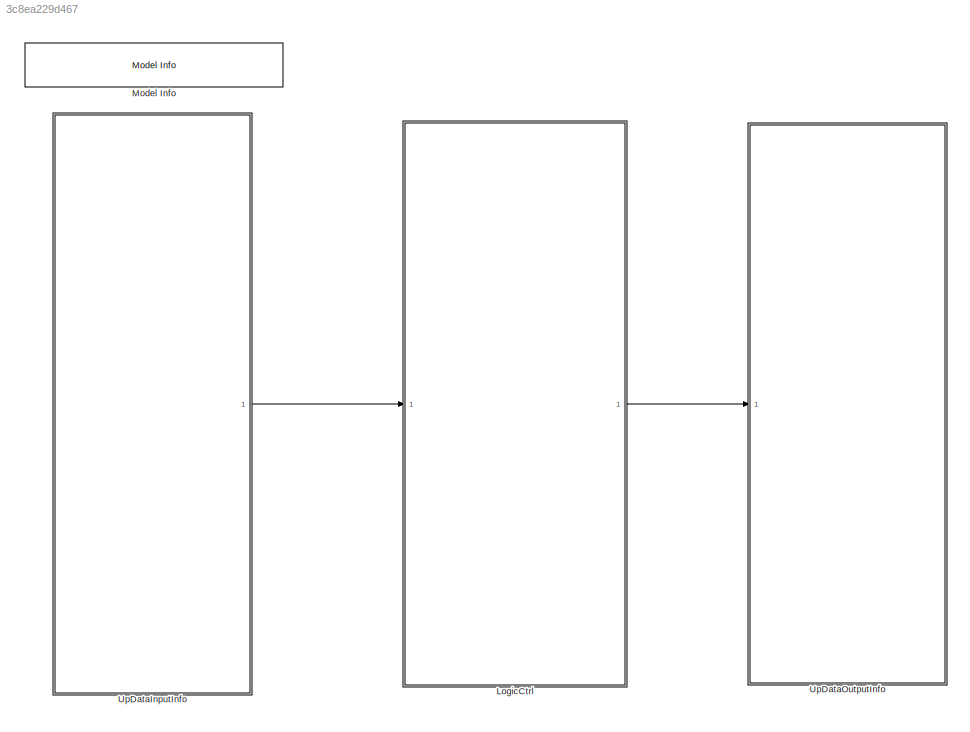
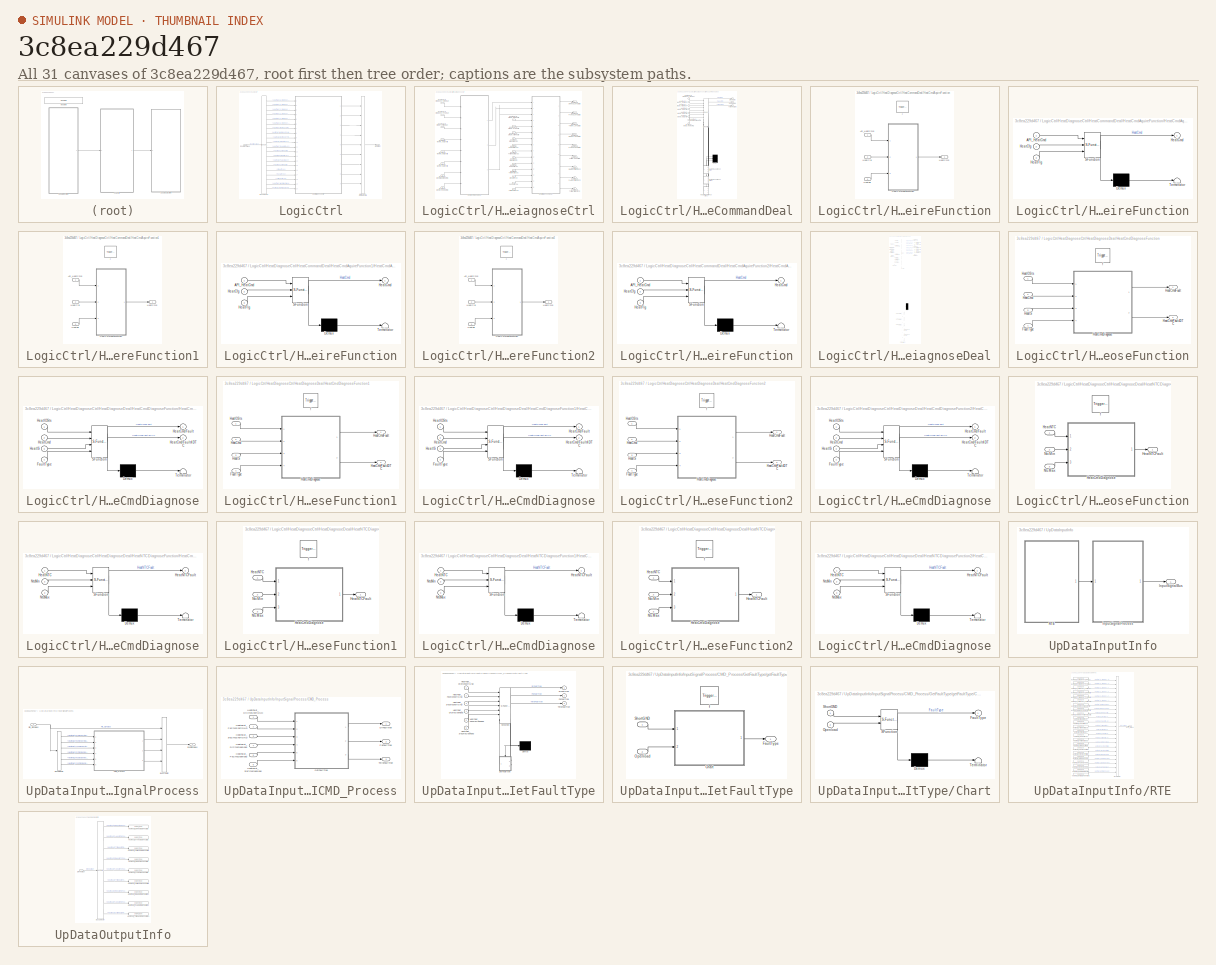
[diagram: thumbnail index - all 31 canvases of the model, root first then tree order]
MODEL slx_3c8ea229d467
KIND model
BLOCK [SubSystem] LogicCtrl
  Ports = [1, 1]
  Priority = 2
  RTWFcnNameOpts = Use subsystem name
  RTWSystemCode = Nonreusable function
  RequestExecContextInheritance = off
  TreatAsAtomicUnit = on
BLOCK [BusSelector] LogicCtrl/Bus Selector
  OutputAsBus = off
  OutputSignals = Rte_SignalBus.HeatFalut_D_SimuIndex_DRHeat,Rte_SignalBus.HeatFalut_D_SimuIndex_PAHeat,Rte_SignalBus.HeatFalut_D_SimuIndex_ThirdHeat,Rte_SignalBus.HeatFalut_D_SimuIndex_DRHeatIo,Rte_SignalBus.HeatFalut_D_SimuIndex_PAHeatIo,Rte_SignalBus.HeatFalut_D_SimuIndex_ThirdHeatIo,Rte_SignalBus.HeatFalut_MemIndexDrHeatConfig,Rte_SignalBus.HeatFalut_MemIndexPaHeatConfig,Rte_SignalBus.HeatFalut_MemIndexThirdHea...<+353ch>
  Ports = [1, 20]
BLOCK [SubSystem] LogicCtrl/HeatDiagnoseCtrl
  AttributesFormatString = %<Description>
  Description = 加热诊断处理
  Ports = [20, 9]
  RequestExecContextInheritance = off
BLOCK [Inport] LogicCtrl/HeatDiagnoseCtrl/DrFaultType
  IconDisplay = Port number
  Port = 16
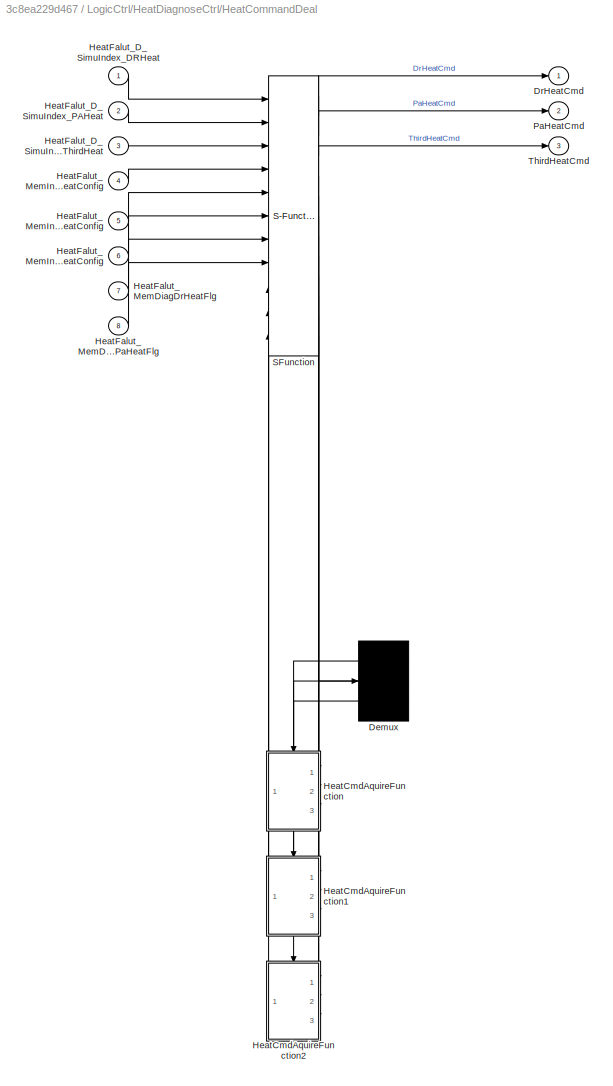
BLOCK [SubSystem] LogicCtrl/HeatDiagnoseCtrl/HeatCommandDeal
  ErrorFcn = Stateflow.Translate.translate
  PermitHierarchicalResolution = ExplicitOnly
  Ports = [8, 3]
  RequestExecContextInheritance = off
  SFBlockType = Chart
  TreatAsAtomicUnit = on
BLOCK [Demux] LogicCtrl/HeatDiagnoseCtrl/HeatCommandDeal/ Demux 
  Outputs = 3
  Ports = [1, 3]
BLOCK [S-Function] LogicCtrl/HeatDiagnoseCtrl/HeatCommandDeal/ SFunction 
  EnableBusSupport = on
  FunctionName = sf_sfun
  Parameters = TRUE
  PortCounts = [11 13]
  Ports = [11, 13]
  SFcnIsStateOwnerBlock = off
  SFunctionDeploymentMode = off
  Tag = Stateflow S-Function Appl_HeatFault_CtrlModel 1
BLOCK [Outport] LogicCtrl/HeatDiagnoseCtrl/HeatCommandDeal/DrHeatCmd
  IconDisplay = Port number
BLOCK [SubSystem] LogicCtrl/HeatDiagnoseCtrl/HeatCommandDeal/HeatCmdAquireFunction
  Ports = [3, 1, 0, 1]
  PreDeleteFcn = Stateflow.SLINSF.SimulinkMan.removePreDeleteFcn
  RequestExecContextInheritance = off
  UndoDeleteFcn = Stateflow.SLINSF.SimulinkMan.restorePreDeleteFcn
BLOCK [Inport] LogicCtrl/HeatDiagnoseCtrl/HeatCommandDeal/HeatCmdAquireFunction/API_HeatCmd
  IconDisplay = Port number
BLOCK [Inport] LogicCtrl/HeatDiagnoseCtrl/HeatCommandDeal/HeatCmdAquireFunction/HeatCfg
  IconDisplay = Port number
  Port = 2
BLOCK [Outport] LogicCtrl/HeatDiagnoseCtrl/HeatCommandDeal/HeatCmdAquireFunction/HeatCmd
  IconDisplay = Port number
BLOCK [SubSystem] LogicCtrl/HeatDiagnoseCtrl/HeatCommandDeal/HeatCmdAquireFunction/HeatCmdAquireFunction
  ErrorFcn = Stateflow.Translate.translate
  PermitHierarchicalResolution = ExplicitOnly
  Ports = [3, 1]
  RequestExecContextInheritance = off
  SFBlockType = Chart
  TreatAsAtomicUnit = on
BLOCK [Demux] LogicCtrl/HeatDiagnoseCtrl/HeatCommandDeal/HeatCmdAquireFunction/HeatCmdAquireFunction/ Demux 
  Outputs = 1
  Ports = [1, 1]
BLOCK [S-Function] LogicCtrl/HeatDiagnoseCtrl/HeatCommandDeal/HeatCmdAquireFunction/HeatCmdAquireFunction/ SFunction 
  EnableBusSupport = off
  FunctionName = sf_sfun
  Parameters = FALSE,TRUE
  PortCounts = [3 2]
  Ports = [3, 2]
  SFcnIsStateOwnerBlock = off
  SFunctionDeploymentMode = off
  Tag = Stateflow S-Function Appl_HeatFault_CtrlModel 2
BLOCK [Terminator] LogicCtrl/HeatDiagnoseCtrl/HeatCommandDeal/HeatCmdAquireFunction/HeatCmdAquireFunction/ Terminator 
BLOCK [Inport] LogicCtrl/HeatDiagnoseCtrl/HeatCommandDeal/HeatCmdAquireFunction/HeatCmdAquireFunction/API_HeatCmd
  IconDisplay = Port number
BLOCK [Inport] LogicCtrl/HeatDiagnoseCtrl/HeatCommandDeal/HeatCmdAquireFunction/HeatCmdAquireFunction/HeatCfg
  IconDisplay = Port number
  Port = 2
BLOCK [Outport] LogicCtrl/HeatDiagnoseCtrl/HeatCommandDeal/HeatCmdAquireFunction/HeatCmdAquireFunction/HeatCmd
  IconDisplay = Port number
BLOCK [Inport] LogicCtrl/HeatDiagnoseCtrl/HeatCommandDeal/HeatCmdAquireFunction/HeatCmdAquireFunction/HeatFlg
  IconDisplay = Port number
  Port = 3
BLOCK [Inport] LogicCtrl/HeatDiagnoseCtrl/HeatCommandDeal/HeatCmdAquireFunction/HeatFlg
  IconDisplay = Port number
  Port = 3
BLOCK [TriggerPort] LogicCtrl/HeatDiagnoseCtrl/HeatCommandDeal/HeatCmdAquireFunction/f
  CopyFcn = Stateflow.SLINSF.SimulinkMan.removeBlockPreDeleteFcn
  Ports = []
  PreDeleteFcn = Stateflow.SLINSF.SimulinkMan.unsafePredeleteFcn
  StatesWhenEnabling = held
  TriggerType = function-call
  VariantControl = (inherit)
BLOCK [SubSystem] LogicCtrl/HeatDiagnoseCtrl/HeatCommandDeal/HeatCmdAquireFunction1
  Ports = [3, 1, 0, 1]
  PreDeleteFcn = Stateflow.SLINSF.SimulinkMan.removePreDeleteFcn
  RequestExecContextInheritance = off
  UndoDeleteFcn = Stateflow.SLINSF.SimulinkMan.restorePreDeleteFcn
BLOCK [Inport] LogicCtrl/HeatDiagnoseCtrl/HeatCommandDeal/HeatCmdAquireFunction1/API_HeatCmd
  IconDisplay = Port number
BLOCK [Inport] LogicCtrl/HeatDiagnoseCtrl/HeatCommandDeal/HeatCmdAquireFunction1/HeatCfg
  IconDisplay = Port number
  Port = 2
BLOCK [Outport] LogicCtrl/HeatDiagnoseCtrl/HeatCommandDeal/HeatCmdAquireFunction1/HeatCmd
  IconDisplay = Port number
BLOCK [SubSystem] LogicCtrl/HeatDiagnoseCtrl/HeatCommandDeal/HeatCmdAquireFunction1/HeatCmdAquireFunction
  ErrorFcn = Stateflow.Translate.translate
  PermitHierarchicalResolution = ExplicitOnly
  Ports = [3, 1]
  RequestExecContextInheritance = off
  SFBlockType = Chart
  TreatAsAtomicUnit = on
BLOCK [Demux] LogicCtrl/HeatDiagnoseCtrl/HeatCommandDeal/HeatCmdAquireFunction1/HeatCmdAquireFunction/ Demux 
  Outputs = 1
  Ports = [1, 1]
BLOCK [S-Function] LogicCtrl/HeatDiagnoseCtrl/HeatCommandDeal/HeatCmdAquireFunction1/HeatCmdAquireFunction/ SFunction 
  EnableBusSupport = off
  FunctionName = sf_sfun
  Parameters = FALSE,TRUE
  PortCounts = [3 2]
  Ports = [3, 2]
  SFcnIsStateOwnerBlock = off
  SFunctionDeploymentMode = off
  Tag = Stateflow S-Function Appl_HeatFault_CtrlModel 6
BLOCK [Terminator] LogicCtrl/HeatDiagnoseCtrl/HeatCommandDeal/HeatCmdAquireFunction1/HeatCmdAquireFunction/ Terminator 
BLOCK [Inport] LogicCtrl/HeatDiagnoseCtrl/HeatCommandDeal/HeatCmdAquireFunction1/HeatCmdAquireFunction/API_HeatCmd
  IconDisplay = Port number
BLOCK [Inport] LogicCtrl/HeatDiagnoseCtrl/HeatCommandDeal/HeatCmdAquireFunction1/HeatCmdAquireFunction/HeatCfg
  IconDisplay = Port number
  Port = 2
BLOCK [Outport] LogicCtrl/HeatDiagnoseCtrl/HeatCommandDeal/HeatCmdAquireFunction1/HeatCmdAquireFunction/HeatCmd
  IconDisplay = Port number
BLOCK [Inport] LogicCtrl/HeatDiagnoseCtrl/HeatCommandDeal/HeatCmdAquireFunction1/HeatCmdAquireFunction/HeatFlg
  IconDisplay = Port number
  Port = 3
BLOCK [Inport] LogicCtrl/HeatDiagnoseCtrl/HeatCommandDeal/HeatCmdAquireFunction1/HeatFlg
  IconDisplay = Port number
  Port = 3
BLOCK [TriggerPort] LogicCtrl/HeatDiagnoseCtrl/HeatCommandDeal/HeatCmdAquireFunction1/f
  CopyFcn = Stateflow.SLINSF.SimulinkMan.removeBlockPreDeleteFcn
  Ports = []
  PreDeleteFcn = Stateflow.SLINSF.SimulinkMan.unsafePredeleteFcn
  StatesWhenEnabling = held
  TriggerType = function-call
  VariantControl = (inherit)
BLOCK [SubSystem] LogicCtrl/HeatDiagnoseCtrl/HeatCommandDeal/HeatCmdAquireFunction2
  Ports = [3, 1, 0, 1]
  PreDeleteFcn = Stateflow.SLINSF.SimulinkMan.removePreDeleteFcn
  RequestExecContextInheritance = off
  UndoDeleteFcn = Stateflow.SLINSF.SimulinkMan.restorePreDeleteFcn
BLOCK [Inport] LogicCtrl/HeatDiagnoseCtrl/HeatCommandDeal/HeatCmdAquireFunction2/API_HeatCmd
  IconDisplay = Port number
BLOCK [Inport] LogicCtrl/HeatDiagnoseCtrl/HeatCommandDeal/HeatCmdAquireFunction2/HeatCfg
  IconDisplay = Port number
  Port = 2
BLOCK [Outport] LogicCtrl/HeatDiagnoseCtrl/HeatCommandDeal/HeatCmdAquireFunction2/HeatCmd
  IconDisplay = Port number
BLOCK [SubSystem] LogicCtrl/HeatDiagnoseCtrl/HeatCommandDeal/HeatCmdAquireFunction2/HeatCmdAquireFunction
  ErrorFcn = Stateflow.Translate.translate
  PermitHierarchicalResolution = ExplicitOnly
  Ports = [3, 1]
  RequestExecContextInheritance = off
  SFBlockType = Chart
  TreatAsAtomicUnit = on
BLOCK [Demux] LogicCtrl/HeatDiagnoseCtrl/HeatCommandDeal/HeatCmdAquireFunction2/HeatCmdAquireFunction/ Demux 
  Outputs = 1
  Ports = [1, 1]
BLOCK [S-Function] LogicCtrl/HeatDiagnoseCtrl/HeatCommandDeal/HeatCmdAquireFunction2/HeatCmdAquireFunction/ SFunction 
  EnableBusSupport = off
  FunctionName = sf_sfun
  Parameters = FALSE,TRUE
  PortCounts = [3 2]
  Ports = [3, 2]
  SFcnIsStateOwnerBlock = off
  SFunctionDeploymentMode = off
  Tag = Stateflow S-Function Appl_HeatFault_CtrlModel 7
BLOCK [Terminator] LogicCtrl/HeatDiagnoseCtrl/HeatCommandDeal/HeatCmdAquireFunction2/HeatCmdAquireFunction/ Terminator 
BLOCK [Inport] LogicCtrl/HeatDiagnoseCtrl/HeatCommandDeal/HeatCmdAquireFunction2/HeatCmdAquireFunction/API_HeatCmd
  IconDisplay = Port number
BLOCK [Inport] LogicCtrl/HeatDiagnoseCtrl/HeatCommandDeal/HeatCmdAquireFunction2/HeatCmdAquireFunction/HeatCfg
  IconDisplay = Port number
  Port = 2
BLOCK [Outport] LogicCtrl/HeatDiagnoseCtrl/HeatCommandDeal/HeatCmdAquireFunction2/HeatCmdAquireFunction/HeatCmd
  IconDisplay = Port number
BLOCK [Inport] LogicCtrl/HeatDiagnoseCtrl/HeatCommandDeal/HeatCmdAquireFunction2/HeatCmdAquireFunction/HeatFlg
  IconDisplay = Port number
  Port = 3
BLOCK [Inport] LogicCtrl/HeatDiagnoseCtrl/HeatCommandDeal/HeatCmdAquireFunction2/HeatFlg
  IconDisplay = Port number
  Port = 3
BLOCK [TriggerPort] LogicCtrl/HeatDiagnoseCtrl/HeatCommandDeal/HeatCmdAquireFunction2/f
  CopyFcn = Stateflow.SLINSF.SimulinkMan.removeBlockPreDeleteFcn
  Ports = []
  PreDeleteFcn = Stateflow.SLINSF.SimulinkMan.unsafePredeleteFcn
  StatesWhenEnabling = held
  TriggerType = function-call
  VariantControl = (inherit)
BLOCK [Inport] LogicCtrl/HeatDiagnoseCtrl/HeatCommandDeal/HeatFalut_D_SimuIndex_DRHeat
  IconDisplay = Port number
BLOCK [Inport] LogicCtrl/HeatDiagnoseCtrl/HeatCommandDeal/HeatFalut_D_SimuIndex_PAHeat
  IconDisplay = Port number
  Port = 2
BLOCK [Inport] LogicCtrl/HeatDiagnoseCtrl/HeatCommandDeal/HeatFalut_D_SimuIndex_ThirdHeat
  IconDisplay = Port number
  Port = 3
BLOCK [Inport] LogicCtrl/HeatDiagnoseCtrl/HeatCommandDeal/HeatFalut_MemDiagDrHeatFlg
  IconDisplay = Port number
  Port = 7
BLOCK [Inport] LogicCtrl/HeatDiagnoseCtrl/HeatCommandDeal/HeatFalut_MemDiagPaHeatFlg
  IconDisplay = Port number
  Port = 8
BLOCK [Inport] LogicCtrl/HeatDiagnoseCtrl/HeatCommandDeal/HeatFalut_MemIndexDrHeatConfig
  IconDisplay = Port number
  Port = 4
BLOCK [Inport] LogicCtrl/HeatDiagnoseCtrl/HeatCommandDeal/HeatFalut_MemIndexPaHeatConfig
  IconDisplay = Port number
  Port = 5
BLOCK [Inport] LogicCtrl/HeatDiagnoseCtrl/HeatCommandDeal/HeatFalut_MemIndexThirdHeatConfig
  IconDisplay = Port number
  Port = 6
BLOCK [Outport] LogicCtrl/HeatDiagnoseCtrl/HeatCommandDeal/PaHeatCmd
  IconDisplay = Port number
  Port = 2
BLOCK [Outport] LogicCtrl/HeatDiagnoseCtrl/HeatCommandDeal/ThirdHeatCmd
  IconDisplay = Port number
  Port = 3
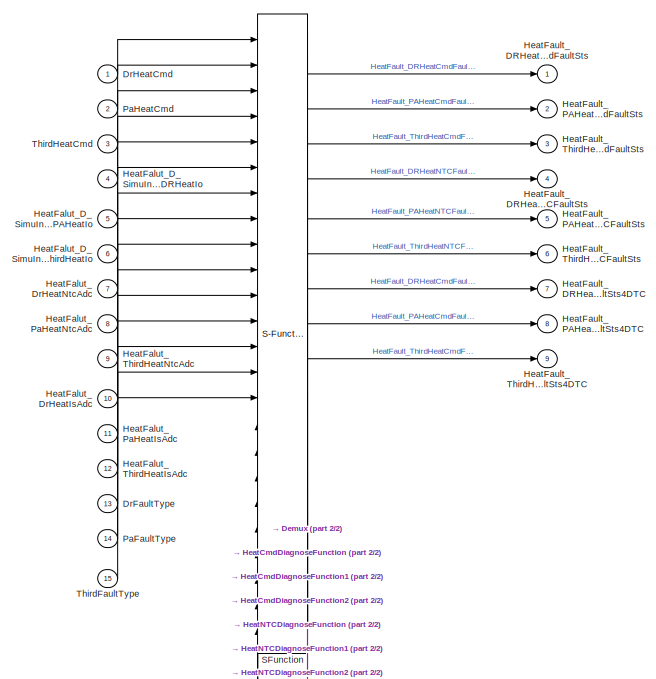
[diagram: LogicCtrl/HeatDiagnoseCtrl/HeatDiagnoseDeal - part 1/2, full width, top band]
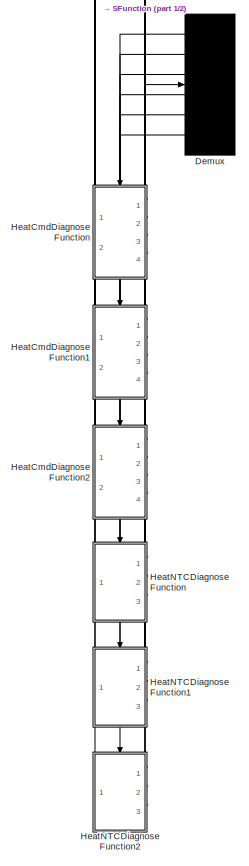
[diagram: LogicCtrl/HeatDiagnoseCtrl/HeatDiagnoseDeal - part 2/2, bottom center region]
BLOCK [SubSystem] LogicCtrl/HeatDiagnoseCtrl/HeatDiagnoseDeal
  ErrorFcn = Stateflow.Translate.translate
  PermitHierarchicalResolution = ExplicitOnly
  Ports = [15, 9]
  RequestExecContextInheritance = off
  SFBlockType = Chart
  TreatAsAtomicUnit = on
BLOCK [Demux] LogicCtrl/HeatDiagnoseCtrl/HeatDiagnoseDeal/ Demux 
  Outputs = 6
  Ports = [1, 6]
BLOCK [S-Function] LogicCtrl/HeatDiagnoseCtrl/HeatDiagnoseDeal/ SFunction 
  EnableBusSupport = on
  FunctionName = sf_sfun
  Parameters = D_HEATFALUT_NtcMax,D_HEATFALUT_NtcMin
  PortCounts = [24 31]
  Ports = [24, 31]
  SFcnIsStateOwnerBlock = off
  SFunctionDeploymentMode = off
  Tag = Stateflow S-Function Appl_HeatFault_CtrlModel 3
BLOCK [Inport] LogicCtrl/HeatDiagnoseCtrl/HeatDiagnoseDeal/DrFaultType
  IconDisplay = Port number
  Port = 13
BLOCK [Inport] LogicCtrl/HeatDiagnoseCtrl/HeatDiagnoseDeal/DrHeatCmd
  IconDisplay = Port number
BLOCK [SubSystem] LogicCtrl/HeatDiagnoseCtrl/HeatDiagnoseDeal/HeatCmdDiagnoseFunction
  Ports = [4, 2, 0, 1]
  PreDeleteFcn = Stateflow.SLINSF.SimulinkMan.removePreDeleteFcn
  RequestExecContextInheritance = off
  UndoDeleteFcn = Stateflow.SLINSF.SimulinkMan.restorePreDeleteFcn
BLOCK [Inport] LogicCtrl/HeatDiagnoseCtrl/HeatDiagnoseDeal/HeatCmdDiagnoseFunction/FaultType
  IconDisplay = Port number
  Port = 4
BLOCK [Inport] LogicCtrl/HeatDiagnoseCtrl/HeatDiagnoseDeal/HeatCmdDiagnoseFunction/HeatCmd
  IconDisplay = Port number
  Port = 2
BLOCK [SubSystem] LogicCtrl/HeatDiagnoseCtrl/HeatDiagnoseDeal/HeatCmdDiagnoseFunction/HeatCmdDiagnose
  ErrorFcn = Stateflow.Translate.translate
  PermitHierarchicalResolution = ExplicitOnly
  Ports = [4, 2]
  RequestExecContextInheritance = off
  SFBlockType = Chart
  TreatAsAtomicUnit = on
BLOCK [Demux] LogicCtrl/HeatDiagnoseCtrl/HeatDiagnoseDeal/HeatCmdDiagnoseFunction/HeatCmdDiagnose/ Demux 
  Outputs = 1
  Ports = [1, 1]
BLOCK [S-Function] LogicCtrl/HeatDiagnoseCtrl/HeatDiagnoseDeal/HeatCmdDiagnoseFunction/HeatCmdDiagnose/ SFunction 
  EnableBusSupport = off
  FunctionName = sf_sfun
  Parameters = CAL_CmdOpenTime,CAL_CmdShortTime,D_HEATFALUT_CmdOpenLoad,D_HEATFALUT_CmdShortToGnd,TRUE
  PortCounts = [4 3]
  Ports = [4, 3]
  SFcnIsStateOwnerBlock = off
  SFunctionDeploymentMode = off
  Tag = Stateflow S-Function Appl_HeatFault_CtrlModel 4
BLOCK [Terminator] LogicCtrl/HeatDiagnoseCtrl/HeatDiagnoseDeal/HeatCmdDiagnoseFunction/HeatCmdDiagnose/ Terminator 
BLOCK [Inport] LogicCtrl/HeatDiagnoseCtrl/HeatDiagnoseDeal/HeatCmdDiagnoseFunction/HeatCmdDiagnose/FaultType
  IconDisplay = Port number
  Port = 4
BLOCK [Inport] LogicCtrl/HeatDiagnoseCtrl/HeatDiagnoseDeal/HeatCmdDiagnoseFunction/HeatCmdDiagnose/HeatCmd
  IconDisplay = Port number
  Port = 2
BLOCK [Outport] LogicCtrl/HeatDiagnoseCtrl/HeatDiagnoseDeal/HeatCmdDiagnoseFunction/HeatCmdDiagnose/HeatCmdFault
  IconDisplay = Port number
BLOCK [Outport] LogicCtrl/HeatDiagnoseCtrl/HeatDiagnoseDeal/HeatCmdDiagnoseFunction/HeatCmdDiagnose/HeatCmdFault4DTC
  IconDisplay = Port number
  Port = 2
BLOCK [Inport] LogicCtrl/HeatDiagnoseCtrl/HeatDiagnoseDeal/HeatCmdDiagnoseFunction/HeatCmdDiagnose/HeatIOSts
  IconDisplay = Port number
BLOCK [Inport] LogicCtrl/HeatDiagnoseCtrl/HeatDiagnoseDeal/HeatCmdDiagnoseFunction/HeatCmdDiagnose/HeatIS
  IconDisplay = Port number
  Port = 3
BLOCK [Outport] LogicCtrl/HeatDiagnoseCtrl/HeatDiagnoseDeal/HeatCmdDiagnoseFunction/HeatCmdFault
  IconDisplay = Port number
BLOCK [Outport] LogicCtrl/HeatDiagnoseCtrl/HeatDiagnoseDeal/HeatCmdDiagnoseFunction/HeatCmdFault4DTC
  IconDisplay = Port number
  Port = 2
BLOCK [Inport] LogicCtrl/HeatDiagnoseCtrl/HeatDiagnoseDeal/HeatCmdDiagnoseFunction/HeatIOSts
  IconDisplay = Port number
BLOCK [Inport] LogicCtrl/HeatDiagnoseCtrl/HeatDiagnoseDeal/HeatCmdDiagnoseFunction/HeatIS
  IconDisplay = Port number
  Port = 3
BLOCK [TriggerPort] LogicCtrl/HeatDiagnoseCtrl/HeatDiagnoseDeal/HeatCmdDiagnoseFunction/f
  CopyFcn = Stateflow.SLINSF.SimulinkMan.removeBlockPreDeleteFcn
  Ports = []
  PreDeleteFcn = Stateflow.SLINSF.SimulinkMan.unsafePredeleteFcn
  StatesWhenEnabling = held
  TriggerType = function-call
  VariantControl = (inherit)
BLOCK [SubSystem] LogicCtrl/HeatDiagnoseCtrl/HeatDiagnoseDeal/HeatCmdDiagnoseFunction1
  Ports = [4, 2, 0, 1]
  PreDeleteFcn = Stateflow.SLINSF.SimulinkMan.removePreDeleteFcn
  RequestExecContextInheritance = off
  UndoDeleteFcn = Stateflow.SLINSF.SimulinkMan.restorePreDeleteFcn
BLOCK [Inport] LogicCtrl/HeatDiagnoseCtrl/HeatDiagnoseDeal/HeatCmdDiagnoseFunction1/FaultType
  IconDisplay = Port number
  Port = 4
BLOCK [Inport] LogicCtrl/HeatDiagnoseCtrl/HeatDiagnoseDeal/HeatCmdDiagnoseFunction1/HeatCmd
  IconDisplay = Port number
  Port = 2
BLOCK [SubSystem] LogicCtrl/HeatDiagnoseCtrl/HeatDiagnoseDeal/HeatCmdDiagnoseFunction1/HeatCmdDiagnose
  ErrorFcn = Stateflow.Translate.translate
  PermitHierarchicalResolution = ExplicitOnly
  Ports = [4, 2]
  RequestExecContextInheritance = off
  SFBlockType = Chart
  TreatAsAtomicUnit = on
BLOCK [Demux] LogicCtrl/HeatDiagnoseCtrl/HeatDiagnoseDeal/HeatCmdDiagnoseFunction1/HeatCmdDiagnose/ Demux 
  Outputs = 1
  Ports = [1, 1]
BLOCK [S-Function] LogicCtrl/HeatDiagnoseCtrl/HeatDiagnoseDeal/HeatCmdDiagnoseFunction1/HeatCmdDiagnose/ SFunction 
  EnableBusSupport = off
  FunctionName = sf_sfun
  Parameters = CAL_CmdOpenTime,CAL_CmdShortTime,D_HEATFALUT_CmdOpenLoad,D_HEATFALUT_CmdShortToGnd,TRUE
  PortCounts = [4 3]
  Ports = [4, 3]
  SFcnIsStateOwnerBlock = off
  SFunctionDeploymentMode = off
  Tag = Stateflow S-Function Appl_HeatFault_CtrlModel 8
BLOCK [Terminator] LogicCtrl/HeatDiagnoseCtrl/HeatDiagnoseDeal/HeatCmdDiagnoseFunction1/HeatCmdDiagnose/ Terminator 
BLOCK [Inport] LogicCtrl/HeatDiagnoseCtrl/HeatDiagnoseDeal/HeatCmdDiagnoseFunction1/HeatCmdDiagnose/FaultType
  IconDisplay = Port number
  Port = 4
BLOCK [Inport] LogicCtrl/HeatDiagnoseCtrl/HeatDiagnoseDeal/HeatCmdDiagnoseFunction1/HeatCmdDiagnose/HeatCmd
  IconDisplay = Port number
  Port = 2
BLOCK [Outport] LogicCtrl/HeatDiagnoseCtrl/HeatDiagnoseDeal/HeatCmdDiagnoseFunction1/HeatCmdDiagnose/HeatCmdFault
  IconDisplay = Port number
BLOCK [Outport] LogicCtrl/HeatDiagnoseCtrl/HeatDiagnoseDeal/HeatCmdDiagnoseFunction1/HeatCmdDiagnose/HeatCmdFault4DTC
  IconDisplay = Port number
  Port = 2
BLOCK [Inport] LogicCtrl/HeatDiagnoseCtrl/HeatDiagnoseDeal/HeatCmdDiagnoseFunction1/HeatCmdDiagnose/HeatIOSts
  IconDisplay = Port number
BLOCK [Inport] LogicCtrl/HeatDiagnoseCtrl/HeatDiagnoseDeal/HeatCmdDiagnoseFunction1/HeatCmdDiagnose/HeatIS
  IconDisplay = Port number
  Port = 3
BLOCK [Outport] LogicCtrl/HeatDiagnoseCtrl/HeatDiagnoseDeal/HeatCmdDiagnoseFunction1/HeatCmdFault
  IconDisplay = Port number
BLOCK [Outport] LogicCtrl/HeatDiagnoseCtrl/HeatDiagnoseDeal/HeatCmdDiagnoseFunction1/HeatCmdFault4DTC
  IconDisplay = Port number
  Port = 2
BLOCK [Inport] LogicCtrl/HeatDiagnoseCtrl/HeatDiagnoseDeal/HeatCmdDiagnoseFunction1/HeatIOSts
  IconDisplay = Port number
BLOCK [Inport] LogicCtrl/HeatDiagnoseCtrl/HeatDiagnoseDeal/HeatCmdDiagnoseFunction1/HeatIS
  IconDisplay = Port number
  Port = 3
BLOCK [TriggerPort] LogicCtrl/HeatDiagnoseCtrl/HeatDiagnoseDeal/HeatCmdDiagnoseFunction1/f
  CopyFcn = Stateflow.SLINSF.SimulinkMan.removeBlockPreDeleteFcn
  Ports = []
  PreDeleteFcn = Stateflow.SLINSF.SimulinkMan.unsafePredeleteFcn
  StatesWhenEnabling = held
  TriggerType = function-call
  VariantControl = (inherit)
BLOCK [SubSystem] LogicCtrl/HeatDiagnoseCtrl/HeatDiagnoseDeal/HeatCmdDiagnoseFunction2
  Ports = [4, 2, 0, 1]
  PreDeleteFcn = Stateflow.SLINSF.SimulinkMan.removePreDeleteFcn
  RequestExecContextInheritance = off
  UndoDeleteFcn = Stateflow.SLINSF.SimulinkMan.restorePreDeleteFcn
BLOCK [Inport] LogicCtrl/HeatDiagnoseCtrl/HeatDiagnoseDeal/HeatCmdDiagnoseFunction2/FaultType
  IconDisplay = Port number
  Port = 4
BLOCK [Inport] LogicCtrl/HeatDiagnoseCtrl/HeatDiagnoseDeal/HeatCmdDiagnoseFunction2/HeatCmd
  IconDisplay = Port number
  Port = 2
BLOCK [SubSystem] LogicCtrl/HeatDiagnoseCtrl/HeatDiagnoseDeal/HeatCmdDiagnoseFunction2/HeatCmdDiagnose
  ErrorFcn = Stateflow.Translate.translate
  PermitHierarchicalResolution = ExplicitOnly
  Ports = [4, 2]
  RequestExecContextInheritance = off
  SFBlockType = Chart
  TreatAsAtomicUnit = on
BLOCK [Demux] LogicCtrl/HeatDiagnoseCtrl/HeatDiagnoseDeal/HeatCmdDiagnoseFunction2/HeatCmdDiagnose/ Demux 
  Outputs = 1
  Ports = [1, 1]
BLOCK [S-Function] LogicCtrl/HeatDiagnoseCtrl/HeatDiagnoseDeal/HeatCmdDiagnoseFunction2/HeatCmdDiagnose/ SFunction 
  EnableBusSupport = off
  FunctionName = sf_sfun
  Parameters = CAL_CmdOpenTime,CAL_CmdShortTime,D_HEATFALUT_CmdOpenLoad_W,D_HEATFALUT_CmdShortToGnd,TRUE
  PortCounts = [4 3]
  Ports = [4, 3]
  SFcnIsStateOwnerBlock = off
  SFunctionDeploymentMode = off
  Tag = Stateflow S-Function Appl_HeatFault_CtrlModel 9
BLOCK [Terminator] LogicCtrl/HeatDiagnoseCtrl/HeatDiagnoseDeal/HeatCmdDiagnoseFunction2/HeatCmdDiagnose/ Terminator 
BLOCK [Inport] LogicCtrl/HeatDiagnoseCtrl/HeatDiagnoseDeal/HeatCmdDiagnoseFunction2/HeatCmdDiagnose/FaultType
  IconDisplay = Port number
  Port = 4
BLOCK [Inport] LogicCtrl/HeatDiagnoseCtrl/HeatDiagnoseDeal/HeatCmdDiagnoseFunction2/HeatCmdDiagnose/HeatCmd
  IconDisplay = Port number
  Port = 2
BLOCK [Outport] LogicCtrl/HeatDiagnoseCtrl/HeatDiagnoseDeal/HeatCmdDiagnoseFunction2/HeatCmdDiagnose/HeatCmdFault
  IconDisplay = Port number
BLOCK [Outport] LogicCtrl/HeatDiagnoseCtrl/HeatDiagnoseDeal/HeatCmdDiagnoseFunction2/HeatCmdDiagnose/HeatCmdFault4DTC
  IconDisplay = Port number
  Port = 2
BLOCK [Inport] LogicCtrl/HeatDiagnoseCtrl/HeatDiagnoseDeal/HeatCmdDiagnoseFunction2/HeatCmdDiagnose/HeatIOSts
  IconDisplay = Port number
BLOCK [Inport] LogicCtrl/HeatDiagnoseCtrl/HeatDiagnoseDeal/HeatCmdDiagnoseFunction2/HeatCmdDiagnose/HeatIS
  IconDisplay = Port number
  Port = 3
BLOCK [Outport] LogicCtrl/HeatDiagnoseCtrl/HeatDiagnoseDeal/HeatCmdDiagnoseFunction2/HeatCmdFault
  IconDisplay = Port number
BLOCK [Outport] LogicCtrl/HeatDiagnoseCtrl/HeatDiagnoseDeal/HeatCmdDiagnoseFunction2/HeatCmdFault4DTC
  IconDisplay = Port number
  Port = 2
BLOCK [Inport] LogicCtrl/HeatDiagnoseCtrl/HeatDiagnoseDeal/HeatCmdDiagnoseFunction2/HeatIOSts
  IconDisplay = Port number
BLOCK [Inport] LogicCtrl/HeatDiagnoseCtrl/HeatDiagnoseDeal/HeatCmdDiagnoseFunction2/HeatIS
  IconDisplay = Port number
  Port = 3
BLOCK [TriggerPort] LogicCtrl/HeatDiagnoseCtrl/HeatDiagnoseDeal/HeatCmdDiagnoseFunction2/f
  CopyFcn = Stateflow.SLINSF.SimulinkMan.removeBlockPreDeleteFcn
  Ports = []
  PreDeleteFcn = Stateflow.SLINSF.SimulinkMan.unsafePredeleteFcn
  StatesWhenEnabling = held
  TriggerType = function-call
  VariantControl = (inherit)
BLOCK [Inport] LogicCtrl/HeatDiagnoseCtrl/HeatDiagnoseDeal/HeatFalut_D_SimuIndex_DRHeatIo
  IconDisplay = Port number
  Port = 4
BLOCK [Inport] LogicCtrl/HeatDiagnoseCtrl/HeatDiagnoseDeal/HeatFalut_D_SimuIndex_PAHeatIo
  IconDisplay = Port number
  Port = 5
BLOCK [Inport] LogicCtrl/HeatDiagnoseCtrl/HeatDiagnoseDeal/HeatFalut_D_SimuIndex_ThirdHeatIo
  IconDisplay = Port number
  Port = 6
BLOCK [Inport] LogicCtrl/HeatDiagnoseCtrl/HeatDiagnoseDeal/HeatFalut_DrHeatIsAdc
  IconDisplay = Port number
  Port = 10
BLOCK [Inport] LogicCtrl/HeatDiagnoseCtrl/HeatDiagnoseDeal/HeatFalut_DrHeatNtcAdc
  IconDisplay = Port number
  Port = 7
BLOCK [Inport] LogicCtrl/HeatDiagnoseCtrl/HeatDiagnoseDeal/HeatFalut_PaHeatIsAdc
  IconDisplay = Port number
  Port = 11
BLOCK [Inport] LogicCtrl/HeatDiagnoseCtrl/HeatDiagnoseDeal/HeatFalut_PaHeatNtcAdc
  IconDisplay = Port number
  Port = 8
BLOCK [Inport] LogicCtrl/HeatDiagnoseCtrl/HeatDiagnoseDeal/HeatFalut_ThirdHeatIsAdc
  IconDisplay = Port number
  Port = 12
BLOCK [Inport] LogicCtrl/HeatDiagnoseCtrl/HeatDiagnoseDeal/HeatFalut_ThirdHeatNtcAdc
  IconDisplay = Port number
  Port = 9
BLOCK [Outport] LogicCtrl/HeatDiagnoseCtrl/HeatDiagnoseDeal/HeatFault_DRHeatCmdFaultSts
  IconDisplay = Port number
BLOCK [Outport] LogicCtrl/HeatDiagnoseCtrl/HeatDiagnoseDeal/HeatFault_DRHeatCmdFaultSts4DTC
  IconDisplay = Port number
  Port = 7
BLOCK [Outport] LogicCtrl/HeatDiagnoseCtrl/HeatDiagnoseDeal/HeatFault_DRHeatNTCFaultSts
  IconDisplay = Port number
  Port = 4
BLOCK [Outport] LogicCtrl/HeatDiagnoseCtrl/HeatDiagnoseDeal/HeatFault_PAHeatCmdFaultSts
  IconDisplay = Port number
  Port = 2
BLOCK [Outport] LogicCtrl/HeatDiagnoseCtrl/HeatDiagnoseDeal/HeatFault_PAHeatCmdFaultSts4DTC
  IconDisplay = Port number
  Port = 8
BLOCK [Outport] LogicCtrl/HeatDiagnoseCtrl/HeatDiagnoseDeal/HeatFault_PAHeatNTCFaultSts
  IconDisplay = Port number
  Port = 5
BLOCK [Outport] LogicCtrl/HeatDiagnoseCtrl/HeatDiagnoseDeal/HeatFault_ThirdHeatCmdFaultSts
  IconDisplay = Port number
  Port = 3
BLOCK [Outport] LogicCtrl/HeatDiagnoseCtrl/HeatDiagnoseDeal/HeatFault_ThirdHeatCmdFaultSts4DTC
  IconDisplay = Port number
  Port = 9
BLOCK [Outport] LogicCtrl/HeatDiagnoseCtrl/HeatDiagnoseDeal/HeatFault_ThirdHeatNTCFaultSts
  IconDisplay = Port number
  Port = 6
BLOCK [SubSystem] LogicCtrl/HeatDiagnoseCtrl/HeatDiagnoseDeal/HeatNTCDiagnoseFunction
  Ports = [3, 1, 0, 1]
  PreDeleteFcn = Stateflow.SLINSF.SimulinkMan.removePreDeleteFcn
  RequestExecContextInheritance = off
  UndoDeleteFcn = Stateflow.SLINSF.SimulinkMan.restorePreDeleteFcn
BLOCK [SubSystem] LogicCtrl/HeatDiagnoseCtrl/HeatDiagnoseDeal/HeatNTCDiagnoseFunction/HeatCmdDiagnose
  ErrorFcn = Stateflow.Translate.translate
  PermitHierarchicalResolution = ExplicitOnly
  Ports = [3, 1]
  RequestExecContextInheritance = off
  SFBlockType = Chart
  TreatAsAtomicUnit = on
BLOCK [Demux] LogicCtrl/HeatDiagnoseCtrl/HeatDiagnoseDeal/HeatNTCDiagnoseFunction/HeatCmdDiagnose/ Demux 
  Outputs = 1
  Ports = [1, 1]
BLOCK [S-Function] LogicCtrl/HeatDiagnoseCtrl/HeatDiagnoseDeal/HeatNTCDiagnoseFunction/HeatCmdDiagnose/ SFunction 
  EnableBusSupport = off
  FunctionName = sf_sfun
  Parameters = CAL_NTCOpenTime,CAL_NTCOverTime,CAL_NTCShortTime,CAL_NTCWaitTime,D_HEATFALUT_NtcOpenLoad,D_HEATFALUT_NtcShortToGnd
  PortCounts = [3 2]
  Ports = [3, 2]
  SFcnIsStateOwnerBlock = off
  SFunctionDeploymentMode = off
  Tag = Stateflow S-Function Appl_HeatFault_CtrlModel 5
BLOCK [Terminator] LogicCtrl/HeatDiagnoseCtrl/HeatDiagnoseDeal/HeatNTCDiagnoseFunction/HeatCmdDiagnose/ Terminator 
BLOCK [Inport] LogicCtrl/HeatDiagnoseCtrl/HeatDiagnoseDeal/HeatNTCDiagnoseFunction/HeatCmdDiagnose/HeatNTC
  IconDisplay = Port number
BLOCK [Outport] LogicCtrl/HeatDiagnoseCtrl/HeatDiagnoseDeal/HeatNTCDiagnoseFunction/HeatCmdDiagnose/HeatNTCFault
  IconDisplay = Port number
BLOCK [Inport] LogicCtrl/HeatDiagnoseCtrl/HeatDiagnoseDeal/HeatNTCDiagnoseFunction/HeatCmdDiagnose/NtcMax
  IconDisplay = Port number
  Port = 3
BLOCK [Inport] LogicCtrl/HeatDiagnoseCtrl/HeatDiagnoseDeal/HeatNTCDiagnoseFunction/HeatCmdDiagnose/NtcMin
  IconDisplay = Port number
  Port = 2
BLOCK [Inport] LogicCtrl/HeatDiagnoseCtrl/HeatDiagnoseDeal/HeatNTCDiagnoseFunction/HeatNTC
  IconDisplay = Port number
BLOCK [Outport] LogicCtrl/HeatDiagnoseCtrl/HeatDiagnoseDeal/HeatNTCDiagnoseFunction/HeatNTCFault
  IconDisplay = Port number
BLOCK [Inport] LogicCtrl/HeatDiagnoseCtrl/HeatDiagnoseDeal/HeatNTCDiagnoseFunction/NtcMax
  IconDisplay = Port number
  Port = 3
BLOCK [Inport] LogicCtrl/HeatDiagnoseCtrl/HeatDiagnoseDeal/HeatNTCDiagnoseFunction/NtcMin
  IconDisplay = Port number
  Port = 2
BLOCK [TriggerPort] LogicCtrl/HeatDiagnoseCtrl/HeatDiagnoseDeal/HeatNTCDiagnoseFunction/f
  CopyFcn = Stateflow.SLINSF.SimulinkMan.removeBlockPreDeleteFcn
  Ports = []
  PreDeleteFcn = Stateflow.SLINSF.SimulinkMan.unsafePredeleteFcn
  StatesWhenEnabling = held
  TriggerType = function-call
  VariantControl = (inherit)
BLOCK [SubSystem] LogicCtrl/HeatDiagnoseCtrl/HeatDiagnoseDeal/HeatNTCDiagnoseFunction1
  Ports = [3, 1, 0, 1]
  PreDeleteFcn = Stateflow.SLINSF.SimulinkMan.removePreDeleteFcn
  RequestExecContextInheritance = off
  UndoDeleteFcn = Stateflow.SLINSF.SimulinkMan.restorePreDeleteFcn
BLOCK [SubSystem] LogicCtrl/HeatDiagnoseCtrl/HeatDiagnoseDeal/HeatNTCDiagnoseFunction1/HeatCmdDiagnose
  ErrorFcn = Stateflow.Translate.translate
  PermitHierarchicalResolution = ExplicitOnly
  Ports = [3, 1]
  RequestExecContextInheritance = off
  SFBlockType = Chart
  TreatAsAtomicUnit = on
BLOCK [Demux] LogicCtrl/HeatDiagnoseCtrl/HeatDiagnoseDeal/HeatNTCDiagnoseFunction1/HeatCmdDiagnose/ Demux 
  Outputs = 1
  Ports = [1, 1]
BLOCK [S-Function] LogicCtrl/HeatDiagnoseCtrl/HeatDiagnoseDeal/HeatNTCDiagnoseFunction1/HeatCmdDiagnose/ SFunction 
  EnableBusSupport = off
  FunctionName = sf_sfun
  Parameters = CAL_NTCOpenTime,CAL_NTCOverTime,CAL_NTCShortTime,CAL_NTCWaitTime,D_HEATFALUT_NtcOpenLoad,D_HEATFALUT_NtcShortToGnd
  PortCounts = [3 2]
  Ports = [3, 2]
  SFcnIsStateOwnerBlock = off
  SFunctionDeploymentMode = off
  Tag = Stateflow S-Function Appl_HeatFault_CtrlModel 10
BLOCK [Terminator] LogicCtrl/HeatDiagnoseCtrl/HeatDiagnoseDeal/HeatNTCDiagnoseFunction1/HeatCmdDiagnose/ Terminator 
BLOCK [Inport] LogicCtrl/HeatDiagnoseCtrl/HeatDiagnoseDeal/HeatNTCDiagnoseFunction1/HeatCmdDiagnose/HeatNTC
  IconDisplay = Port number
BLOCK [Outport] LogicCtrl/HeatDiagnoseCtrl/HeatDiagnoseDeal/HeatNTCDiagnoseFunction1/HeatCmdDiagnose/HeatNTCFault
  IconDisplay = Port number
BLOCK [Inport] LogicCtrl/HeatDiagnoseCtrl/HeatDiagnoseDeal/HeatNTCDiagnoseFunction1/HeatCmdDiagnose/NtcMax
  IconDisplay = Port number
  Port = 3
BLOCK [Inport] LogicCtrl/HeatDiagnoseCtrl/HeatDiagnoseDeal/HeatNTCDiagnoseFunction1/HeatCmdDiagnose/NtcMin
  IconDisplay = Port number
  Port = 2
BLOCK [Inport] LogicCtrl/HeatDiagnoseCtrl/HeatDiagnoseDeal/HeatNTCDiagnoseFunction1/HeatNTC
  IconDisplay = Port number
BLOCK [Outport] LogicCtrl/HeatDiagnoseCtrl/HeatDiagnoseDeal/HeatNTCDiagnoseFunction1/HeatNTCFault
  IconDisplay = Port number
BLOCK [Inport] LogicCtrl/HeatDiagnoseCtrl/HeatDiagnoseDeal/HeatNTCDiagnoseFunction1/NtcMax
  IconDisplay = Port number
  Port = 3
BLOCK [Inport] LogicCtrl/HeatDiagnoseCtrl/HeatDiagnoseDeal/HeatNTCDiagnoseFunction1/NtcMin
  IconDisplay = Port number
  Port = 2
BLOCK [TriggerPort] LogicCtrl/HeatDiagnoseCtrl/HeatDiagnoseDeal/HeatNTCDiagnoseFunction1/f
  CopyFcn = Stateflow.SLINSF.SimulinkMan.removeBlockPreDeleteFcn
  Ports = []
  PreDeleteFcn = Stateflow.SLINSF.SimulinkMan.unsafePredeleteFcn
  StatesWhenEnabling = held
  TriggerType = function-call
  VariantControl = (inherit)
BLOCK [SubSystem] LogicCtrl/HeatDiagnoseCtrl/HeatDiagnoseDeal/HeatNTCDiagnoseFunction2
  Ports = [3, 1, 0, 1]
  PreDeleteFcn = Stateflow.SLINSF.SimulinkMan.removePreDeleteFcn
  RequestExecContextInheritance = off
  UndoDeleteFcn = Stateflow.SLINSF.SimulinkMan.restorePreDeleteFcn
BLOCK [SubSystem] LogicCtrl/HeatDiagnoseCtrl/HeatDiagnoseDeal/HeatNTCDiagnoseFunction2/HeatCmdDiagnose
  ErrorFcn = Stateflow.Translate.translate
  PermitHierarchicalResolution = ExplicitOnly
  Ports = [3, 1]
  RequestExecContextInheritance = off
  SFBlockType = Chart
  TreatAsAtomicUnit = on
BLOCK [Demux] LogicCtrl/HeatDiagnoseCtrl/HeatDiagnoseDeal/HeatNTCDiagnoseFunction2/HeatCmdDiagnose/ Demux 
  Outputs = 1
  Ports = [1, 1]
BLOCK [S-Function] LogicCtrl/HeatDiagnoseCtrl/HeatDiagnoseDeal/HeatNTCDiagnoseFunction2/HeatCmdDiagnose/ SFunction 
  EnableBusSupport = off
  FunctionName = sf_sfun
  Parameters = CAL_NTCOpenTime,CAL_NTCOverTime,CAL_NTCShortTime,CAL_NTCWaitTime,D_HEATFALUT_NtcOpenLoad,D_HEATFALUT_NtcShortToGnd
  PortCounts = [3 2]
  Ports = [3, 2]
  SFcnIsStateOwnerBlock = off
  SFunctionDeploymentMode = off
  Tag = Stateflow S-Function Appl_HeatFault_CtrlModel 11
BLOCK [Terminator] LogicCtrl/HeatDiagnoseCtrl/HeatDiagnoseDeal/HeatNTCDiagnoseFunction2/HeatCmdDiagnose/ Terminator 
BLOCK [Inport] LogicCtrl/HeatDiagnoseCtrl/HeatDiagnoseDeal/HeatNTCDiagnoseFunction2/HeatCmdDiagnose/HeatNTC
  IconDisplay = Port number
BLOCK [Outport] LogicCtrl/HeatDiagnoseCtrl/HeatDiagnoseDeal/HeatNTCDiagnoseFunction2/HeatCmdDiagnose/HeatNTCFault
  IconDisplay = Port number
BLOCK [Inport] LogicCtrl/HeatDiagnoseCtrl/HeatDiagnoseDeal/HeatNTCDiagnoseFunction2/HeatCmdDiagnose/NtcMax
  IconDisplay = Port number
  Port = 3
BLOCK [Inport] LogicCtrl/HeatDiagnoseCtrl/HeatDiagnoseDeal/HeatNTCDiagnoseFunction2/HeatCmdDiagnose/NtcMin
  IconDisplay = Port number
  Port = 2
BLOCK [Inport] LogicCtrl/HeatDiagnoseCtrl/HeatDiagnoseDeal/HeatNTCDiagnoseFunction2/HeatNTC
  IconDisplay = Port number
BLOCK [Outport] LogicCtrl/HeatDiagnoseCtrl/HeatDiagnoseDeal/HeatNTCDiagnoseFunction2/HeatNTCFault
  IconDisplay = Port number
BLOCK [Inport] LogicCtrl/HeatDiagnoseCtrl/HeatDiagnoseDeal/HeatNTCDiagnoseFunction2/NtcMax
  IconDisplay = Port number
  Port = 3
BLOCK [Inport] LogicCtrl/HeatDiagnoseCtrl/HeatDiagnoseDeal/HeatNTCDiagnoseFunction2/NtcMin
  IconDisplay = Port number
  Port = 2
BLOCK [TriggerPort] LogicCtrl/HeatDiagnoseCtrl/HeatDiagnoseDeal/HeatNTCDiagnoseFunction2/f
  CopyFcn = Stateflow.SLINSF.SimulinkMan.removeBlockPreDeleteFcn
  Ports = []
  PreDeleteFcn = Stateflow.SLINSF.SimulinkMan.unsafePredeleteFcn
  StatesWhenEnabling = held
  TriggerType = function-call
  VariantControl = (inherit)
BLOCK [Inport] LogicCtrl/HeatDiagnoseCtrl/HeatDiagnoseDeal/PaFaultType
  IconDisplay = Port number
  Port = 14
BLOCK [Inport] LogicCtrl/HeatDiagnoseCtrl/HeatDiagnoseDeal/PaHeatCmd
  IconDisplay = Port number
  Port = 2
BLOCK [Inport] LogicCtrl/HeatDiagnoseCtrl/HeatDiagnoseDeal/ThirdFaultType
  IconDisplay = Port number
  Port = 15
BLOCK [Inport] LogicCtrl/HeatDiagnoseCtrl/HeatDiagnoseDeal/ThirdHeatCmd
  IconDisplay = Port number
  Port = 3
BLOCK [Inport] LogicCtrl/HeatDiagnoseCtrl/HeatFalut_D_SimuIndex_DRHeat
  IconDisplay = Port number
BLOCK [Inport] LogicCtrl/HeatDiagnoseCtrl/HeatFalut_D_SimuIndex_DRHeatIo
  IconDisplay = Port number
  Port = 4
BLOCK [Inport] LogicCtrl/HeatDiagnoseCtrl/HeatFalut_D_SimuIndex_PAHeat
  IconDisplay = Port number
  Port = 2
BLOCK [Inport] LogicCtrl/HeatDiagnoseCtrl/HeatFalut_D_SimuIndex_PAHeatIo
  IconDisplay = Port number
  Port = 5
BLOCK [Inport] LogicCtrl/HeatDiagnoseCtrl/HeatFalut_D_SimuIndex_ThirdHeat
  IconDisplay = Port number
  Port = 3
BLOCK [Inport] LogicCtrl/HeatDiagnoseCtrl/HeatFalut_D_SimuIndex_ThirdHeatIo
  IconDisplay = Port number
  Port = 6
BLOCK [Inport] LogicCtrl/HeatDiagnoseCtrl/HeatFalut_DrHeatIsAdc
  IconDisplay = Port number
  Port = 13
BLOCK [Inport] LogicCtrl/HeatDiagnoseCtrl/HeatFalut_DrHeatNtcAdc
  IconDisplay = Port number
  Port = 10
BLOCK [Inport] LogicCtrl/HeatDiagnoseCtrl/HeatFalut_MemDiagDrHeatFlg
  IconDisplay = Port number
  Port = 19
BLOCK [Inport] LogicCtrl/HeatDiagnoseCtrl/HeatFalut_MemDiagPaHeatFlg
  IconDisplay = Port number
  Port = 20
BLOCK [Inport] LogicCtrl/HeatDiagnoseCtrl/HeatFalut_MemIndexDrHeatConfig
  IconDisplay = Port number
  Port = 7
BLOCK [Inport] LogicCtrl/HeatDiagnoseCtrl/HeatFalut_MemIndexPaHeatConfig
  IconDisplay = Port number
  Port = 8
BLOCK [Inport] LogicCtrl/HeatDiagnoseCtrl/HeatFalut_MemIndexThirdHeatConfig
  IconDisplay = Port number
  Port = 9
BLOCK [Inport] LogicCtrl/HeatDiagnoseCtrl/HeatFalut_PaHeatIsAdc
  IconDisplay = Port number
  Port = 14
BLOCK [Inport] LogicCtrl/HeatDiagnoseCtrl/HeatFalut_PaHeatNtcAdc
  IconDisplay = Port number
  Port = 11
BLOCK [Inport] LogicCtrl/HeatDiagnoseCtrl/HeatFalut_ThirdHeatIsAdc
  IconDisplay = Port number
  Port = 15
BLOCK [Inport] LogicCtrl/HeatDiagnoseCtrl/HeatFalut_ThirdHeatNtcAdc
  IconDisplay = Port number
  Port = 12
BLOCK [Outport] LogicCtrl/HeatDiagnoseCtrl/HeatFault_DRHeatCmdFaultSts
  IconDisplay = Port number
BLOCK [Outport] LogicCtrl/HeatDiagnoseCtrl/HeatFault_DRHeatCmdFaultSts4DTC
  IconDisplay = Port number
  Port = 7
BLOCK [Outport] LogicCtrl/HeatDiagnoseCtrl/HeatFault_DRHeatNTCFaultSts
  IconDisplay = Port number
  Port = 4
BLOCK [Outport] LogicCtrl/HeatDiagnoseCtrl/HeatFault_PAHeatCmdFaultSts
  IconDisplay = Port number
  Port = 2
BLOCK [Outport] LogicCtrl/HeatDiagnoseCtrl/HeatFault_PAHeatCmdFaultSts4DTC
  IconDisplay = Port number
  Port = 8
BLOCK [Outport] LogicCtrl/HeatDiagnoseCtrl/HeatFault_PAHeatNTCFaultSts
  IconDisplay = Port number
  Port = 5
BLOCK [Outport] LogicCtrl/HeatDiagnoseCtrl/HeatFault_ThirdHeatCmdFaultSts
  IconDisplay = Port number
  Port = 3
BLOCK [Outport] LogicCtrl/HeatDiagnoseCtrl/HeatFault_ThirdHeatCmdFaultSts4DTC
  IconDisplay = Port number
  Port = 9
BLOCK [Outport] LogicCtrl/HeatDiagnoseCtrl/HeatFault_ThirdHeatNTCFaultSts
  IconDisplay = Port number
  Port = 6
BLOCK [Inport] LogicCtrl/HeatDiagnoseCtrl/PaFaultType
  IconDisplay = Port number
  Port = 17
BLOCK [Inport] LogicCtrl/HeatDiagnoseCtrl/ThirdFaultType
  IconDisplay = Port number
  Port = 18
BLOCK [Outport] LogicCtrl/HeatOut
  IconDisplay = Port number
BLOCK [Inport] LogicCtrl/InputSignalBus
  IconDisplay = Port number
BLOCK [BusCreator] LogicCtrl/MainVent_OutputLvlSts
  DisplayOption = bar
  InheritFromInputs = on
  Inputs = 9
  Ports = [9, 1]
BLOCK [Reference] Model Info  REF=simulink/Model-Wide
Utilities/Model Info
  Ports = []
  SourceBlock = simulink/Model-Wide\nUtilities/Model Info
  SourceProductBaseCode = SL
  SourceProductName = Simulink
  SourceType = CMBlock
BLOCK [SubSystem] UpDataInputInfo
  Ports = [0, 1]
  Priority = 1
  RTWFcnNameOpts = Use subsystem name
  RTWSystemCode = Nonreusable function
  RequestExecContextInheritance = off
  TreatAsAtomicUnit = on
BLOCK [Outport] UpDataInputInfo/InputSignalBus
  IconDisplay = Port number
BLOCK [SubSystem] UpDataInputInfo/InputSignalProcess
  AttributesFormatString = %<Description>
  Description = 数据处理
  Ports = [1, 1]
  RTWFcnNameOpts = Use subsystem name
  RTWSystemCode = Nonreusable function
  RequestExecContextInheritance = off
BLOCK [BusCreator] UpDataInputInfo/InputSignalProcess/Bus Creator
  DisplayOption = bar
  InheritFromInputs = on
  Inputs = 4
  Ports = [4, 1]
BLOCK [BusSelector] UpDataInputInfo/InputSignalProcess/Bus Selector
  OutputAsBus = off
  OutputSignals = HeatFalut_DrCmdShortGND,HeatFalut_PaCmdShortGND,HeatFalut_3rdCmdShortGND,HeatFalut_DrCmdOpenload,HeatFalut_PaCmdOpenload,HeatFalut_3rdCmdOpenload
  Ports = [1, 6]
BLOCK [SubSystem] UpDataInputInfo/InputSignalProcess/CMD_Process
  AttributesFormatString = %<Description>
  Description = CMD诊断DTC处理（确认当前CMD有哪个DTC）
  Ports = [6, 3]
  RequestExecContextInheritance = off
BLOCK [Outport] UpDataInputInfo/InputSignalProcess/CMD_Process/DrFaultType
  IconDisplay = Port number
BLOCK [SubSystem] UpDataInputInfo/InputSignalProcess/CMD_Process/GetFaultType
  ErrorFcn = Stateflow.Translate.translate
  PermitHierarchicalResolution = ExplicitOnly
  Ports = [6, 3]
  RequestExecContextInheritance = off
  SFBlockType = Chart
  TreatAsAtomicUnit = on
BLOCK [Demux] UpDataInputInfo/InputSignalProcess/CMD_Process/GetFaultType/ Demux 
  Outputs = 1
  Ports = [1, 1]
BLOCK [S-Function] UpDataInputInfo/InputSignalProcess/CMD_Process/GetFaultType/ SFunction 
  EnableBusSupport = on
  FunctionName = sf_sfun
  PortCounts = [7 6]
  Ports = [7, 6]
  SFcnIsStateOwnerBlock = off
  SFunctionDeploymentMode = off
  Tag = Stateflow S-Function Appl_HeatFault_CtrlModel 15
BLOCK [Outport] UpDataInputInfo/InputSignalProcess/CMD_Process/GetFaultType/DrFaultType
  IconDisplay = Port number
BLOCK [Inport] UpDataInputInfo/InputSignalProcess/CMD_Process/GetFaultType/HeatFalut_3rdCmdOpenload
  IconDisplay = Port number
  Port = 6
BLOCK [Inport] UpDataInputInfo/InputSignalProcess/CMD_Process/GetFaultType/HeatFalut_3rdCmdShortGND
  IconDisplay = Port number
  Port = 3
BLOCK [Inport] UpDataInputInfo/InputSignalProcess/CMD_Process/GetFaultType/HeatFalut_DrCmdOpenload
  IconDisplay = Port number
  Port = 4
BLOCK [Inport] UpDataInputInfo/InputSignalProcess/CMD_Process/GetFaultType/HeatFalut_DrCmdShortGND
  IconDisplay = Port number
BLOCK [Inport] UpDataInputInfo/InputSignalProcess/CMD_Process/GetFaultType/HeatFalut_PaCmdOpenload
  IconDisplay = Port number
  Port = 5
BLOCK [Inport] UpDataInputInfo/InputSignalProcess/CMD_Process/GetFaultType/HeatFalut_PaCmdShortGND
  IconDisplay = Port number
  Port = 2
BLOCK [Outport] UpDataInputInfo/InputSignalProcess/CMD_Process/GetFaultType/PaFaultType
  IconDisplay = Port number
  Port = 2
BLOCK [Outport] UpDataInputInfo/InputSignalProcess/CMD_Process/GetFaultType/ThirdFaultType
  IconDisplay = Port number
  Port = 3
BLOCK [SubSystem] UpDataInputInfo/InputSignalProcess/CMD_Process/GetFaultType/getFaultType
  Ports = [2, 1, 0, 1]
  PreDeleteFcn = Stateflow.SLINSF.SimulinkMan.removePreDeleteFcn
  RequestExecContextInheritance = off
  UndoDeleteFcn = Stateflow.SLINSF.SimulinkMan.restorePreDeleteFcn
BLOCK [SubSystem] UpDataInputInfo/InputSignalProcess/CMD_Process/GetFaultType/getFaultType/Chart
  ErrorFcn = Stateflow.Translate.translate
  PermitHierarchicalResolution = ExplicitOnly
  Ports = [2, 1]
  RequestExecContextInheritance = off
  SFBlockType = Chart
  TreatAsAtomicUnit = on
BLOCK [Demux] UpDataInputInfo/InputSignalProcess/CMD_Process/GetFaultType/getFaultType/Chart/ Demux 
  Outputs = 1
  Ports = [1, 1]
BLOCK [S-Function] UpDataInputInfo/InputSignalProcess/CMD_Process/GetFaultType/getFaultType/Chart/ SFunction 
  EnableBusSupport = off
  FunctionName = sf_sfun
  Parameters = TRUE
  PortCounts = [2 2]
  Ports = [2, 2]
  SFcnIsStateOwnerBlock = off
  SFunctionDeploymentMode = off
  Tag = Stateflow S-Function Appl_HeatFault_CtrlModel 16
BLOCK [Terminator] UpDataInputInfo/InputSignalProcess/CMD_Process/GetFaultType/getFaultType/Chart/ Terminator 
BLOCK [Outport] UpDataInputInfo/InputSignalProcess/CMD_Process/GetFaultType/getFaultType/Chart/FaultType
  IconDisplay = Port number
BLOCK [Inport] UpDataInputInfo/InputSignalProcess/CMD_Process/GetFaultType/getFaultType/Chart/Openload
  IconDisplay = Port number
  Port = 2
BLOCK [Inport] UpDataInputInfo/InputSignalProcess/CMD_Process/GetFaultType/getFaultType/Chart/ShortGND
  IconDisplay = Port number
BLOCK [Outport] UpDataInputInfo/InputSignalProcess/CMD_Process/GetFaultType/getFaultType/FaultType
  IconDisplay = Port number
BLOCK [Inport] UpDataInputInfo/InputSignalProcess/CMD_Process/GetFaultType/getFaultType/Openload
  IconDisplay = Port number
  Port = 2
BLOCK [Inport] UpDataInputInfo/InputSignalProcess/CMD_Process/GetFaultType/getFaultType/ShortGND
  IconDisplay = Port number
BLOCK [TriggerPort] UpDataInputInfo/InputSignalProcess/CMD_Process/GetFaultType/getFaultType/f
  CopyFcn = Stateflow.SLINSF.SimulinkMan.removeBlockPreDeleteFcn
  Ports = []
  PreDeleteFcn = Stateflow.SLINSF.SimulinkMan.unsafePredeleteFcn
  StatesWhenEnabling = held
  TriggerType = function-call
  VariantControl = (inherit)
BLOCK [Inport] UpDataInputInfo/InputSignalProcess/CMD_Process/HeatFalut_3rdCmdOpenload
  IconDisplay = Port number
  Port = 6
BLOCK [Inport] UpDataInputInfo/InputSignalProcess/CMD_Process/HeatFalut_3rdCmdShortGND
  IconDisplay = Port number
  Port = 3
BLOCK [Inport] UpDataInputInfo/InputSignalProcess/CMD_Process/HeatFalut_DrCmdOpenload
  IconDisplay = Port number
  Port = 4
BLOCK [Inport] UpDataInputInfo/InputSignalProcess/CMD_Process/HeatFalut_DrCmdShortGND
  IconDisplay = Port number
BLOCK [Inport] UpDataInputInfo/InputSignalProcess/CMD_Process/HeatFalut_PaCmdOpenload
  IconDisplay = Port number
  Port = 5
BLOCK [Inport] UpDataInputInfo/InputSignalProcess/CMD_Process/HeatFalut_PaCmdShortGND
  IconDisplay = Port number
  Port = 2
BLOCK [Outport] UpDataInputInfo/InputSignalProcess/CMD_Process/PaFaultType
  IconDisplay = Port number
  Port = 2
BLOCK [Outport] UpDataInputInfo/InputSignalProcess/CMD_Process/ThirdFaultType
  IconDisplay = Port number
  Port = 3
BLOCK [Outport] UpDataInputInfo/InputSignalProcess/InputSignalBus
  IconDisplay = Port number
BLOCK [Inport] UpDataInputInfo/InputSignalProcess/Rte_SignalBus
  IconDisplay = Port number
BLOCK [SubSystem] UpDataInputInfo/RTE
  AttributesFormatString = %<Description>
  Description = 接口自动生成
  Ports = [0, 1]
  RTWFcnNameOpts = Use subsystem name
  RTWSystemCode = Nonreusable function
  RequestExecContextInheritance = off
  TreatAsAtomicUnit = on
BLOCK [BusCreator] UpDataInputInfo/RTE/Bus Creator
  DisplayOption = bar
  InheritFromInputs = on
  Inputs = 23
  Ports = [23, 1]
BLOCK [Reference] UpDataInputInfo/RTE/HeatFalut_3rdCmdOpenload  REF=DareLib/Dare/getAPI_type
  AttributesFormatString = %<g_funcname>
  Ports = [0, 1]
  SourceBlock = DareLib/Dare/getAPI_type
  SourceProductName = Dare Library
  SourceType = Dare Custom
BLOCK [Reference] UpDataInputInfo/RTE/HeatFalut_3rdCmdShortGND  REF=DareLib/Dare/getAPI_type
  AttributesFormatString = %<g_funcname>
  Ports = [0, 1]
  SourceBlock = DareLib/Dare/getAPI_type
  SourceProductName = Dare Library
  SourceType = Dare Custom
BLOCK [Reference] UpDataInputInfo/RTE/HeatFalut_D_SimuIndex_DRHeat  REF=DareLib/Dare/getAPI_type
  AttributesFormatString = %<g_funcname>
  Ports = [0, 1]
  SourceBlock = DareLib/Dare/getAPI_type
  SourceProductName = Dare Library
  SourceType = Dare Custom
BLOCK [Reference] UpDataInputInfo/RTE/HeatFalut_D_SimuIndex_DRHeatIo  REF=DareLib/Dare/getAPI_type
  AttributesFormatString = %<g_funcname>
  Ports = [0, 1]
  SourceBlock = DareLib/Dare/getAPI_type
  SourceProductName = Dare Library
  SourceType = Dare Custom
BLOCK [Reference] UpDataInputInfo/RTE/HeatFalut_D_SimuIndex_PAHeat  REF=DareLib/Dare/getAPI_type
  AttributesFormatString = %<g_funcname>
  Ports = [0, 1]
  SourceBlock = DareLib/Dare/getAPI_type
  SourceProductName = Dare Library
  SourceType = Dare Custom
BLOCK [Reference] UpDataInputInfo/RTE/HeatFalut_D_SimuIndex_PAHeatIo  REF=DareLib/Dare/getAPI_type
  AttributesFormatString = %<g_funcname>
  Ports = [0, 1]
  SourceBlock = DareLib/Dare/getAPI_type
  SourceProductName = Dare Library
  SourceType = Dare Custom
BLOCK [Reference] UpDataInputInfo/RTE/HeatFalut_D_SimuIndex_ThirdHeat  REF=DareLib/Dare/getAPI_type
  AttributesFormatString = %<g_funcname>
  Ports = [0, 1]
  SourceBlock = DareLib/Dare/getAPI_type
  SourceProductName = Dare Library
  SourceType = Dare Custom
BLOCK [Reference] UpDataInputInfo/RTE/HeatFalut_D_SimuIndex_ThirdHeatIo  REF=DareLib/Dare/getAPI_type
  AttributesFormatString = %<g_funcname>
  Ports = [0, 1]
  SourceBlock = DareLib/Dare/getAPI_type
  SourceProductName = Dare Library
  SourceType = Dare Custom
BLOCK [Reference] UpDataInputInfo/RTE/HeatFalut_DrCmdOpenload  REF=DareLib/Dare/getAPI_type
  AttributesFormatString = %<g_funcname>
  Ports = [0, 1]
  SourceBlock = DareLib/Dare/getAPI_type
  SourceProductName = Dare Library
  SourceType = Dare Custom
BLOCK [Reference] UpDataInputInfo/RTE/HeatFalut_DrCmdShortGND  REF=DareLib/Dare/getAPI_type
  AttributesFormatString = %<g_funcname>
  Ports = [0, 1]
  SourceBlock = DareLib/Dare/getAPI_type
  SourceProductName = Dare Library
  SourceType = Dare Custom
BLOCK [Reference] UpDataInputInfo/RTE/HeatFalut_DrHeatIsAdc  REF=DareLib/Dare/getAPI_type
  AttributesFormatString = %<g_funcname>
  Ports = [0, 1]
  SourceBlock = DareLib/Dare/getAPI_type
  SourceProductName = Dare Library
  SourceType = Dare Custom
BLOCK [Reference] UpDataInputInfo/RTE/HeatFalut_DrHeatNtcAdc  REF=DareLib/Dare/getAPI_type
  AttributesFormatString = %<g_funcname>
  Ports = [0, 1]
  SourceBlock = DareLib/Dare/getAPI_type
  SourceProductName = Dare Library
  SourceType = Dare Custom
BLOCK [Reference] UpDataInputInfo/RTE/HeatFalut_MemDiagDrHeatFlg  REF=DareLib/Dare/getAPI_type
  AttributesFormatString = %<g_funcname>
  Ports = [0, 1]
  SourceBlock = DareLib/Dare/getAPI_type
  SourceProductName = Dare Library
  SourceType = Dare Custom
BLOCK [Reference] UpDataInputInfo/RTE/HeatFalut_MemDiagPaHeatFlg  REF=DareLib/Dare/getAPI_type
  AttributesFormatString = %<g_funcname>
  Ports = [0, 1]
  SourceBlock = DareLib/Dare/getAPI_type
  SourceProductName = Dare Library
  SourceType = Dare Custom
BLOCK [Reference] UpDataInputInfo/RTE/HeatFalut_MemIndexDrHeatConfig  REF=DareLib/Dare/getAPI_type
  AttributesFormatString = %<g_funcname>
  Ports = [0, 1]
  SourceBlock = DareLib/Dare/getAPI_type
  SourceProductName = Dare Library
  SourceType = Dare Custom
BLOCK [Reference] UpDataInputInfo/RTE/HeatFalut_MemIndexPaHeatConfig  REF=DareLib/Dare/getAPI_type
  AttributesFormatString = %<g_funcname>
  Ports = [0, 1]
  SourceBlock = DareLib/Dare/getAPI_type
  SourceProductName = Dare Library
  SourceType = Dare Custom
BLOCK [Reference] UpDataInputInfo/RTE/HeatFalut_MemIndexThirdHeatConfig  REF=DareLib/Dare/getAPI_type
  AttributesFormatString = %<g_funcname>
  Ports = [0, 1]
  SourceBlock = DareLib/Dare/getAPI_type
  SourceProductName = Dare Library
  SourceType = Dare Custom
BLOCK [Reference] UpDataInputInfo/RTE/HeatFalut_PaCmdOpenload  REF=DareLib/Dare/getAPI_type
  AttributesFormatString = %<g_funcname>
  Ports = [0, 1]
  SourceBlock = DareLib/Dare/getAPI_type
  SourceProductName = Dare Library
  SourceType = Dare Custom
BLOCK [Reference] UpDataInputInfo/RTE/HeatFalut_PaCmdShortGND  REF=DareLib/Dare/getAPI_type
  AttributesFormatString = %<g_funcname>
  Ports = [0, 1]
  SourceBlock = DareLib/Dare/getAPI_type
  SourceProductName = Dare Library
  SourceType = Dare Custom
BLOCK [Reference] UpDataInputInfo/RTE/HeatFalut_PaHeatIsAdc  REF=DareLib/Dare/getAPI_type
  AttributesFormatString = %<g_funcname>
  Ports = [0, 1]
  SourceBlock = DareLib/Dare/getAPI_type
  SourceProductName = Dare Library
  SourceType = Dare Custom
BLOCK [Reference] UpDataInputInfo/RTE/HeatFalut_PaHeatNtcAdc  REF=DareLib/Dare/getAPI_type
  AttributesFormatString = %<g_funcname>
  Ports = [0, 1]
  SourceBlock = DareLib/Dare/getAPI_type
  SourceProductName = Dare Library
  SourceType = Dare Custom
BLOCK [Reference] UpDataInputInfo/RTE/HeatFalut_ThirdHeatIsAdc  REF=DareLib/Dare/getAPI_type
  AttributesFormatString = %<g_funcname>
  Ports = [0, 1]
  SourceBlock = DareLib/Dare/getAPI_type
  SourceProductName = Dare Library
  SourceType = Dare Custom
BLOCK [Reference] UpDataInputInfo/RTE/HeatFalut_ThirdHeatNtcAdc  REF=DareLib/Dare/getAPI_type
  AttributesFormatString = %<g_funcname>
  Ports = [0, 1]
  SourceBlock = DareLib/Dare/getAPI_type
  SourceProductName = Dare Library
  SourceType = Dare Custom
BLOCK [Outport] UpDataInputInfo/RTE/RTE_Signal
  IconDisplay = Port number
BLOCK [SubSystem] UpDataOutputInfo
  Ports = [1]
  Priority = 3
  RTWFcnNameOpts = Use subsystem name
  RTWSystemCode = Nonreusable function
  RequestExecContextInheritance = off
  TreatAsAtomicUnit = on
BLOCK [BusSelector] UpDataOutputInfo/Bus Selector
  OutputAsBus = off
  OutputSignals = HeatFault_DRHeatCmdFaultSts,HeatFault_PAHeatCmdFaultSts,HeatFault_ThirdHeatCmdFaultSts,HeatFault_DRHeatNTCFaultSts,HeatFault_PAHeatNTCFaultSts,HeatFault_ThirdHeatNTCFaultSts,HeatFault_DRHeatCmdFaultSts4DTC,HeatFault_PAHeatCmdFaultSts4DTC,HeatFault_ThirdHeatCmdFaultSts4DTC
  Ports = [1, 9]
BLOCK [Inport] UpDataOutputInfo/DrvHeatOut
  IconDisplay = Port number
BLOCK [Reference] UpDataOutputInfo/HeatFault_DRHeatCmdFaultSts  REF=DareLib/Dare/setAPI_type
  AttributesFormatString = %<g_funcname>
  Ports = [1]
  SourceBlock = DareLib/Dare/setAPI_type
  SourceProductName = Dare Library
  SourceType = Dare Custom
BLOCK [Reference] UpDataOutputInfo/HeatFault_DRHeatCmdFaultSts1  REF=DareLib/Dare/setAPI_type
  AttributesFormatString = %<g_funcname>
  Ports = [1]
  SourceBlock = DareLib/Dare/setAPI_type
  SourceProductName = Dare Library
  SourceType = Dare Custom
BLOCK [Reference] UpDataOutputInfo/HeatFault_DRHeatNTCFaultSts  REF=DareLib/Dare/setAPI_type
  AttributesFormatString = %<g_funcname>
  Ports = [1]
  SourceBlock = DareLib/Dare/setAPI_type
  SourceProductName = Dare Library
  SourceType = Dare Custom
BLOCK [Reference] UpDataOutputInfo/HeatFault_PAHeatCmdFaultSts  REF=DareLib/Dare/setAPI_type
  AttributesFormatString = %<g_funcname>
  Ports = [1]
  SourceBlock = DareLib/Dare/setAPI_type
  SourceProductName = Dare Library
  SourceType = Dare Custom
BLOCK [Reference] UpDataOutputInfo/HeatFault_PAHeatCmdFaultSts1  REF=DareLib/Dare/setAPI_type
  AttributesFormatString = %<g_funcname>
  Ports = [1]
  SourceBlock = DareLib/Dare/setAPI_type
  SourceProductName = Dare Library
  SourceType = Dare Custom
BLOCK [Reference] UpDataOutputInfo/HeatFault_PAHeatNTCFaultSts  REF=DareLib/Dare/setAPI_type
  AttributesFormatString = %<g_funcname>
  Ports = [1]
  SourceBlock = DareLib/Dare/setAPI_type
  SourceProductName = Dare Library
  SourceType = Dare Custom
BLOCK [Reference] UpDataOutputInfo/HeatFault_ThirdHeatCmdFaultSts  REF=DareLib/Dare/setAPI_type
  AttributesFormatString = %<g_funcname>
  Ports = [1]
  SourceBlock = DareLib/Dare/setAPI_type
  SourceProductName = Dare Library
  SourceType = Dare Custom
BLOCK [Reference] UpDataOutputInfo/HeatFault_ThirdHeatCmdFaultSts1  REF=DareLib/Dare/setAPI_type
  AttributesFormatString = %<g_funcname>
  Ports = [1]
  SourceBlock = DareLib/Dare/setAPI_type
  SourceProductName = Dare Library
  SourceType = Dare Custom
BLOCK [Reference] UpDataOutputInfo/HeatFault_ThirdHeatNTCFaultSts  REF=DareLib/Dare/setAPI_type
  AttributesFormatString = %<g_funcname>
  Ports = [1]
  SourceBlock = DareLib/Dare/setAPI_type
  SourceProductName = Dare Library
  SourceType = Dare Custom
LINE LogicCtrl/Bus Selector:1 -> LogicCtrl/HeatDiagnoseCtrl:1
LINE LogicCtrl/Bus Selector:10 -> LogicCtrl/HeatDiagnoseCtrl:10
LINE LogicCtrl/Bus Selector:11 -> LogicCtrl/HeatDiagnoseCtrl:11
LINE LogicCtrl/Bus Selector:12 -> LogicCtrl/HeatDiagnoseCtrl:12
LINE LogicCtrl/Bus Selector:13 -> LogicCtrl/HeatDiagnoseCtrl:13
LINE LogicCtrl/Bus Selector:14 -> LogicCtrl/HeatDiagnoseCtrl:14
LINE LogicCtrl/Bus Selector:15 -> LogicCtrl/HeatDiagnoseCtrl:15
LINE LogicCtrl/Bus Selector:16 -> LogicCtrl/HeatDiagnoseCtrl:16
LINE LogicCtrl/Bus Selector:17 -> LogicCtrl/HeatDiagnoseCtrl:17
LINE LogicCtrl/Bus Selector:18 -> LogicCtrl/HeatDiagnoseCtrl:18
LINE LogicCtrl/Bus Selector:19 -> LogicCtrl/HeatDiagnoseCtrl:19
LINE LogicCtrl/Bus Selector:2 -> LogicCtrl/HeatDiagnoseCtrl:2
LINE LogicCtrl/Bus Selector:20 -> LogicCtrl/HeatDiagnoseCtrl:20
LINE LogicCtrl/Bus Selector:3 -> LogicCtrl/HeatDiagnoseCtrl:3
LINE LogicCtrl/Bus Selector:4 -> LogicCtrl/HeatDiagnoseCtrl:4
LINE LogicCtrl/Bus Selector:5 -> LogicCtrl/HeatDiagnoseCtrl:5
LINE LogicCtrl/Bus Selector:6 -> LogicCtrl/HeatDiagnoseCtrl:6
LINE LogicCtrl/Bus Selector:7 -> LogicCtrl/HeatDiagnoseCtrl:7
LINE LogicCtrl/Bus Selector:8 -> LogicCtrl/HeatDiagnoseCtrl:8
LINE LogicCtrl/Bus Selector:9 -> LogicCtrl/HeatDiagnoseCtrl:9
LINE LogicCtrl/HeatDiagnoseCtrl/DrFaultType:1 -> LogicCtrl/HeatDiagnoseCtrl/HeatDiagnoseDeal:13
LINE LogicCtrl/HeatDiagnoseCtrl/HeatCommandDeal:1 -> LogicCtrl/HeatDiagnoseCtrl/HeatDiagnoseDeal:1
LINE LogicCtrl/HeatDiagnoseCtrl/HeatCommandDeal:2 -> LogicCtrl/HeatDiagnoseCtrl/HeatDiagnoseDeal:2
LINE LogicCtrl/HeatDiagnoseCtrl/HeatCommandDeal:3 -> LogicCtrl/HeatDiagnoseCtrl/HeatDiagnoseDeal:3
LINE LogicCtrl/HeatDiagnoseCtrl/HeatDiagnoseDeal:1 -> LogicCtrl/HeatDiagnoseCtrl/HeatFault_DRHeatCmdFaultSts:1
LINE LogicCtrl/HeatDiagnoseCtrl/HeatDiagnoseDeal:2 -> LogicCtrl/HeatDiagnoseCtrl/HeatFault_PAHeatCmdFaultSts:1
LINE LogicCtrl/HeatDiagnoseCtrl/HeatDiagnoseDeal:3 -> LogicCtrl/HeatDiagnoseCtrl/HeatFault_ThirdHeatCmdFaultSts:1
LINE LogicCtrl/HeatDiagnoseCtrl/HeatDiagnoseDeal:4 -> LogicCtrl/HeatDiagnoseCtrl/HeatFault_DRHeatNTCFaultSts:1
LINE LogicCtrl/HeatDiagnoseCtrl/HeatDiagnoseDeal:5 -> LogicCtrl/HeatDiagnoseCtrl/HeatFault_PAHeatNTCFaultSts:1
LINE LogicCtrl/HeatDiagnoseCtrl/HeatDiagnoseDeal:6 -> LogicCtrl/HeatDiagnoseCtrl/HeatFault_ThirdHeatNTCFaultSts:1
LINE LogicCtrl/HeatDiagnoseCtrl/HeatDiagnoseDeal:7 -> LogicCtrl/HeatDiagnoseCtrl/HeatFault_DRHeatCmdFaultSts4DTC:1
LINE LogicCtrl/HeatDiagnoseCtrl/HeatDiagnoseDeal:8 -> LogicCtrl/HeatDiagnoseCtrl/HeatFault_PAHeatCmdFaultSts4DTC:1
LINE LogicCtrl/HeatDiagnoseCtrl/HeatDiagnoseDeal:9 -> LogicCtrl/HeatDiagnoseCtrl/HeatFault_ThirdHeatCmdFaultSts4DTC:1
LINE LogicCtrl/HeatDiagnoseCtrl/HeatFalut_D_SimuIndex_DRHeat:1 -> LogicCtrl/HeatDiagnoseCtrl/HeatCommandDeal:1
LINE LogicCtrl/HeatDiagnoseCtrl/HeatFalut_D_SimuIndex_DRHeatIo:1 -> LogicCtrl/HeatDiagnoseCtrl/HeatDiagnoseDeal:4
LINE LogicCtrl/HeatDiagnoseCtrl/HeatFalut_D_SimuIndex_PAHeat:1 -> LogicCtrl/HeatDiagnoseCtrl/HeatCommandDeal:2
LINE LogicCtrl/HeatDiagnoseCtrl/HeatFalut_D_SimuIndex_PAHeatIo:1 -> LogicCtrl/HeatDiagnoseCtrl/HeatDiagnoseDeal:5
LINE LogicCtrl/HeatDiagnoseCtrl/HeatFalut_D_SimuIndex_ThirdHeat:1 -> LogicCtrl/HeatDiagnoseCtrl/HeatCommandDeal:3
LINE LogicCtrl/HeatDiagnoseCtrl/HeatFalut_D_SimuIndex_ThirdHeatIo:1 -> LogicCtrl/HeatDiagnoseCtrl/HeatDiagnoseDeal:6
LINE LogicCtrl/HeatDiagnoseCtrl/HeatFalut_DrHeatIsAdc:1 -> LogicCtrl/HeatDiagnoseCtrl/HeatDiagnoseDeal:10
LINE LogicCtrl/HeatDiagnoseCtrl/HeatFalut_DrHeatNtcAdc:1 -> LogicCtrl/HeatDiagnoseCtrl/HeatDiagnoseDeal:7
LINE LogicCtrl/HeatDiagnoseCtrl/HeatFalut_MemDiagDrHeatFlg:1 -> LogicCtrl/HeatDiagnoseCtrl/HeatCommandDeal:7
LINE LogicCtrl/HeatDiagnoseCtrl/HeatFalut_MemDiagPaHeatFlg:1 -> LogicCtrl/HeatDiagnoseCtrl/HeatCommandDeal:8
LINE LogicCtrl/HeatDiagnoseCtrl/HeatFalut_MemIndexDrHeatConfig:1 -> LogicCtrl/HeatDiagnoseCtrl/HeatCommandDeal:4
LINE LogicCtrl/HeatDiagnoseCtrl/HeatFalut_MemIndexPaHeatConfig:1 -> LogicCtrl/HeatDiagnoseCtrl/HeatCommandDeal:5
LINE LogicCtrl/HeatDiagnoseCtrl/HeatFalut_MemIndexThirdHeatConfig:1 -> LogicCtrl/HeatDiagnoseCtrl/HeatCommandDeal:6
LINE LogicCtrl/HeatDiagnoseCtrl/HeatFalut_PaHeatIsAdc:1 -> LogicCtrl/HeatDiagnoseCtrl/HeatDiagnoseDeal:11
LINE LogicCtrl/HeatDiagnoseCtrl/HeatFalut_PaHeatNtcAdc:1 -> LogicCtrl/HeatDiagnoseCtrl/HeatDiagnoseDeal:8
LINE LogicCtrl/HeatDiagnoseCtrl/HeatFalut_ThirdHeatIsAdc:1 -> LogicCtrl/HeatDiagnoseCtrl/HeatDiagnoseDeal:12
LINE LogicCtrl/HeatDiagnoseCtrl/HeatFalut_ThirdHeatNtcAdc:1 -> LogicCtrl/HeatDiagnoseCtrl/HeatDiagnoseDeal:9
LINE LogicCtrl/HeatDiagnoseCtrl/PaFaultType:1 -> LogicCtrl/HeatDiagnoseCtrl/HeatDiagnoseDeal:14
LINE LogicCtrl/HeatDiagnoseCtrl/ThirdFaultType:1 -> LogicCtrl/HeatDiagnoseCtrl/HeatDiagnoseDeal:15
LINE LogicCtrl/HeatDiagnoseCtrl:1 -> LogicCtrl/MainVent_OutputLvlSts:1
LINE LogicCtrl/HeatDiagnoseCtrl:2 -> LogicCtrl/MainVent_OutputLvlSts:2
LINE LogicCtrl/HeatDiagnoseCtrl:3 -> LogicCtrl/MainVent_OutputLvlSts:3
LINE LogicCtrl/HeatDiagnoseCtrl:4 -> LogicCtrl/MainVent_OutputLvlSts:4
LINE LogicCtrl/HeatDiagnoseCtrl:5 -> LogicCtrl/MainVent_OutputLvlSts:5
LINE LogicCtrl/HeatDiagnoseCtrl:6 -> LogicCtrl/MainVent_OutputLvlSts:6
LINE LogicCtrl/HeatDiagnoseCtrl:7 -> LogicCtrl/MainVent_OutputLvlSts:7
LINE LogicCtrl/HeatDiagnoseCtrl:8 -> LogicCtrl/MainVent_OutputLvlSts:8
LINE LogicCtrl/HeatDiagnoseCtrl:9 -> LogicCtrl/MainVent_OutputLvlSts:9
LINE LogicCtrl/InputSignalBus:1 -> LogicCtrl/Bus Selector:1
LINE LogicCtrl/MainVent_OutputLvlSts:1 -> LogicCtrl/HeatOut:1
LINE LogicCtrl:1 -> UpDataOutputInfo:1
LINE UpDataInputInfo/InputSignalProcess/Bus Creator:1 -> UpDataInputInfo/InputSignalProcess/InputSignalBus:1
LINE UpDataInputInfo/InputSignalProcess/Bus Selector:1 -> UpDataInputInfo/InputSignalProcess/CMD_Process:1
LINE UpDataInputInfo/InputSignalProcess/Bus Selector:2 -> UpDataInputInfo/InputSignalProcess/CMD_Process:2
LINE UpDataInputInfo/InputSignalProcess/Bus Selector:3 -> UpDataInputInfo/InputSignalProcess/CMD_Process:3
LINE UpDataInputInfo/InputSignalProcess/Bus Selector:4 -> UpDataInputInfo/InputSignalProcess/CMD_Process:4
LINE UpDataInputInfo/InputSignalProcess/Bus Selector:5 -> UpDataInputInfo/InputSignalProcess/CMD_Process:5
LINE UpDataInputInfo/InputSignalProcess/Bus Selector:6 -> UpDataInputInfo/InputSignalProcess/CMD_Process:6
LINE UpDataInputInfo/InputSignalProcess/CMD_Process/GetFaultType:1 -> UpDataInputInfo/InputSignalProcess/CMD_Process/DrFaultType:1
LINE UpDataInputInfo/InputSignalProcess/CMD_Process/GetFaultType:2 -> UpDataInputInfo/InputSignalProcess/CMD_Process/PaFaultType:1
LINE UpDataInputInfo/InputSignalProcess/CMD_Process/GetFaultType:3 -> UpDataInputInfo/InputSignalProcess/CMD_Process/ThirdFaultType:1
LINE UpDataInputInfo/InputSignalProcess/CMD_Process/HeatFalut_3rdCmdOpenload:1 -> UpDataInputInfo/InputSignalProcess/CMD_Process/GetFaultType:6
LINE UpDataInputInfo/InputSignalProcess/CMD_Process/HeatFalut_3rdCmdShortGND:1 -> UpDataInputInfo/InputSignalProcess/CMD_Process/GetFaultType:3
LINE UpDataInputInfo/InputSignalProcess/CMD_Process/HeatFalut_DrCmdOpenload:1 -> UpDataInputInfo/InputSignalProcess/CMD_Process/GetFaultType:4
LINE UpDataInputInfo/InputSignalProcess/CMD_Process/HeatFalut_DrCmdShortGND:1 -> UpDataInputInfo/InputSignalProcess/CMD_Process/GetFaultType:1
LINE UpDataInputInfo/InputSignalProcess/CMD_Process/HeatFalut_PaCmdOpenload:1 -> UpDataInputInfo/InputSignalProcess/CMD_Process/GetFaultType:5
LINE UpDataInputInfo/InputSignalProcess/CMD_Process/HeatFalut_PaCmdShortGND:1 -> UpDataInputInfo/InputSignalProcess/CMD_Process/GetFaultType:2
LINE UpDataInputInfo/InputSignalProcess/CMD_Process:1 -> UpDataInputInfo/InputSignalProcess/Bus Creator:2
LINE UpDataInputInfo/InputSignalProcess/CMD_Process:2 -> UpDataInputInfo/InputSignalProcess/Bus Creator:3
LINE UpDataInputInfo/InputSignalProcess/CMD_Process:3 -> UpDataInputInfo/InputSignalProcess/Bus Creator:4
NET UpDataInputInfo/InputSignalProcess/Rte_SignalBus:1 -> UpDataInputInfo/InputSignalProcess/Bus Creator:1, UpDataInputInfo/InputSignalProcess/Bus Selector:1
LINE UpDataInputInfo/InputSignalProcess:1 -> UpDataInputInfo/InputSignalBus:1
LINE UpDataInputInfo/RTE/Bus Creator:1 -> UpDataInputInfo/RTE/RTE_Signal:1
LINE UpDataInputInfo/RTE/HeatFalut_3rdCmdOpenload:1 -> UpDataInputInfo/RTE/Bus Creator:21
LINE UpDataInputInfo/RTE/HeatFalut_3rdCmdShortGND:1 -> UpDataInputInfo/RTE/Bus Creator:18
LINE UpDataInputInfo/RTE/HeatFalut_D_SimuIndex_DRHeat:1 -> UpDataInputInfo/RTE/Bus Creator:1
LINE UpDataInputInfo/RTE/HeatFalut_D_SimuIndex_DRHeatIo:1 -> UpDataInputInfo/RTE/Bus Creator:4
LINE UpDataInputInfo/RTE/HeatFalut_D_SimuIndex_PAHeat:1 -> UpDataInputInfo/RTE/Bus Creator:2
LINE UpDataInputInfo/RTE/HeatFalut_D_SimuIndex_PAHeatIo:1 -> UpDataInputInfo/RTE/Bus Creator:5
LINE UpDataInputInfo/RTE/HeatFalut_D_SimuIndex_ThirdHeat:1 -> UpDataInputInfo/RTE/Bus Creator:3
LINE UpDataInputInfo/RTE/HeatFalut_D_SimuIndex_ThirdHeatIo:1 -> UpDataInputInfo/RTE/Bus Creator:6
LINE UpDataInputInfo/RTE/HeatFalut_DrCmdOpenload:1 -> UpDataInputInfo/RTE/Bus Creator:19
LINE UpDataInputInfo/RTE/HeatFalut_DrCmdShortGND:1 -> UpDataInputInfo/RTE/Bus Creator:16
LINE UpDataInputInfo/RTE/HeatFalut_DrHeatIsAdc:1 -> UpDataInputInfo/RTE/Bus Creator:13
LINE UpDataInputInfo/RTE/HeatFalut_DrHeatNtcAdc:1 -> UpDataInputInfo/RTE/Bus Creator:10
LINE UpDataInputInfo/RTE/HeatFalut_MemDiagDrHeatFlg:1 -> UpDataInputInfo/RTE/Bus Creator:22
LINE UpDataInputInfo/RTE/HeatFalut_MemDiagPaHeatFlg:1 -> UpDataInputInfo/RTE/Bus Creator:23
LINE UpDataInputInfo/RTE/HeatFalut_MemIndexDrHeatConfig:1 -> UpDataInputInfo/RTE/Bus Creator:7
LINE UpDataInputInfo/RTE/HeatFalut_MemIndexPaHeatConfig:1 -> UpDataInputInfo/RTE/Bus Creator:8
LINE UpDataInputInfo/RTE/HeatFalut_MemIndexThirdHeatConfig:1 -> UpDataInputInfo/RTE/Bus Creator:9
LINE UpDataInputInfo/RTE/HeatFalut_PaCmdOpenload:1 -> UpDataInputInfo/RTE/Bus Creator:20
LINE UpDataInputInfo/RTE/HeatFalut_PaCmdShortGND:1 -> UpDataInputInfo/RTE/Bus Creator:17
LINE UpDataInputInfo/RTE/HeatFalut_PaHeatIsAdc:1 -> UpDataInputInfo/RTE/Bus Creator:14
LINE UpDataInputInfo/RTE/HeatFalut_PaHeatNtcAdc:1 -> UpDataInputInfo/RTE/Bus Creator:11
LINE UpDataInputInfo/RTE/HeatFalut_ThirdHeatIsAdc:1 -> UpDataInputInfo/RTE/Bus Creator:15
LINE UpDataInputInfo/RTE/HeatFalut_ThirdHeatNtcAdc:1 -> UpDataInputInfo/RTE/Bus Creator:12
LINE UpDataInputInfo/RTE:1 -> UpDataInputInfo/InputSignalProcess:1
LINE UpDataInputInfo:1 -> LogicCtrl:1
LINE UpDataOutputInfo/Bus Selector:1 -> UpDataOutputInfo/HeatFault_DRHeatCmdFaultSts:1
LINE UpDataOutputInfo/Bus Selector:2 -> UpDataOutputInfo/HeatFault_PAHeatCmdFaultSts:1
LINE UpDataOutputInfo/Bus Selector:3 -> UpDataOutputInfo/HeatFault_ThirdHeatCmdFaultSts:1
LINE UpDataOutputInfo/Bus Selector:4 -> UpDataOutputInfo/HeatFault_DRHeatNTCFaultSts:1
LINE UpDataOutputInfo/Bus Selector:5 -> UpDataOutputInfo/HeatFault_PAHeatNTCFaultSts:1
LINE UpDataOutputInfo/Bus Selector:6 -> UpDataOutputInfo/HeatFault_ThirdHeatNTCFaultSts:1
LINE UpDataOutputInfo/Bus Selector:7 -> UpDataOutputInfo/HeatFault_DRHeatCmdFaultSts1:1
LINE UpDataOutputInfo/Bus Selector:8 -> UpDataOutputInfo/HeatFault_PAHeatCmdFaultSts1:1
LINE UpDataOutputInfo/Bus Selector:9 -> UpDataOutputInfo/HeatFault_ThirdHeatCmdFaultSts1:1
LINE UpDataOutputInfo/DrvHeatOut:1 -> UpDataOutputInfo/Bus Selector:1
note: NET lines group one-source signal fan-out (src -> all destinations, sorted); 1:1 wires keep LINE
CHART LogicCtrl/HeatDiagnoseCtrl/HeatCommandDeal states=6 transitions=0
  STATE_LABEL 'HeatCmd = HeatCmdAquireFunction(API_HeatCmd,HeatCfg,HeatFlg)'
  STATE_LABEL 'HeatCmd = HeatCmdAquireFunction1(API_HeatCmd,HeatCfg,HeatFlg)'
  STATE_LABEL 'HeatCmd = HeatCmdAquireFunction2(API_HeatCmd,HeatCfg,HeatFlg)'
  STATE_LABEL 'DriverHeatCommandDeal\ndu:\nDrHeatCmd = HeatCmdAquireFunction(HeatFalut_D_SimuIndex_DRHeat,HeatFalut_MemIndexDrHeatConfig,HeatFalut_MemDiagDrHeatFlg);'
  STATE_LABEL 'PassengerHeatCommandDeal\ndu:\nPaHeatCmd = HeatCmdAquireFunction1(HeatFalut_D_SimuIndex_PAHeat,HeatFalut_MemIndexPaHeatConfig,HeatFalut_MemDiagPaHeatFlg);'
  STATE_LABEL 'ThirdHeatCommandDeal\ndu:\nThirdHeatCmd = HeatCmdAquireFunction2(HeatFalut_D_SimuIndex_ThirdHeat,HeatFalut_MemIndexThirdHeatConfig,TRUE);'
CHART LogicCtrl/HeatDiagnoseCtrl/HeatCommandDeal/HeatCmdAquireFunction/HeatCmdAquireFunction states=2 transitions=3
  STATE_LABEL 'HeatCmdInvalid\nen:\nHeatCmd = FALSE;'
  STATE_LABEL 'HeatCmdValid\nen:\nHeatCmd = TRUE;'
CHART LogicCtrl/HeatDiagnoseCtrl/HeatDiagnoseDeal states=9 transitions=0
  STATE_LABEL '[HeatCmdFault,HeatCmdFault4DTC] = HeatCmdDiagnoseFunction(HeatIOSts,HeatCmd,HeatIS,FaultType)'
  STATE_LABEL 'HeatNTCFault = HeatNTCDiagnoseFunction(HeatNTC,NtcMin,NtcMax)'
  STATE_LABEL '[HeatCmdFault,HeatCmdFault4DTC] = HeatCmdDiagnoseFunction1(HeatIOSts,HeatCmd,HeatIS,FaultType)'
  STATE_LABEL 'HeatNTCFault = HeatNTCDiagnoseFunction1(HeatNTC,NtcMin,NtcMax)'
  STATE_LABEL '[HeatCmdFault,HeatCmdFault4DTC] = HeatCmdDiagnoseFunction2(HeatIOSts,HeatCmd,HeatIS,FaultType)'
  STATE_LABEL 'HeatNTCFault = HeatNTCDiagnoseFunction2(HeatNTC,NtcMin,NtcMax)'
  STATE_LABEL 'Driver_HeatDiagnose\ndu:\n[HeatFault_DRHeatCmdFaultSts,HeatFault_DRHeatCmdFaultSts4DTC] = HeatCmdDiagnoseFunction(HeatFalut_D_SimuIndex_DRHeatIo,DrHeatCmd,HeatFalut_DrHeatIsAdc,DrFaultType);\nHeatFault_DRHeatNTCFaultSts = HeatNTCDiagnoseFunction(HeatFalut_DrHeatNtcAdc,D_HEATFALUT_NtcMin,D_HEATFALUT_NtcMax);'
  STATE_LABEL 'Passenger_HeatDiagnose\ndu:\n[HeatFault_PAHeatCmdFaultSts,HeatFault_PAHeatCmdFaultSts4DTC] = HeatCmdDiagnoseFunction1(HeatFalut_D_SimuIndex_PAHeatIo,PaHeatCmd,HeatFalut_PaHeatIsAdc,PaFaultType);\nHeatFault_PAHeatNTCFaultSts = HeatNTCDiagnoseFunction1(HeatFalut_PaHeatNtcAdc,D_HEATFALUT_NtcMin,D_HEATFALUT_NtcMax);'
  STATE_LABEL 'Third_HeatDiagnose\ndu:\n[HeatFault_ThirdHeatCmdFaultSts,HeatFault_ThirdHeatCmdFaultSts4DTC] = HeatCmdDiagnoseFunction2(HeatFalut_D_SimuIndex_ThirdHeatIo,ThirdHeatCmd,HeatFalut_ThirdHeatIsAdc,ThirdFaultType);\nHeatFault_ThirdHeatNTCFaultSts = HeatNTCDiagnoseFunction2(HeatFalut_ThirdHeatNtcAdc,D_HEATFALUT_NtcMin,D_HEATFALUT_NtcMax);'
CHART LogicCtrl/HeatDiagnoseCtrl/HeatDiagnoseDeal/HeatCmdDiagnoseFunction/HeatCmdDiagnose states=7 transitions=38
  STATE_LABEL 'HeatCmdDiagnosis'
  STATE_LABEL 'CmdShortToGND\nex:\nShortTimer = 0;'
  STATE_LABEL '/* 未超时 */\n[CAL_CmdShortTime > ShortTimer]'
  STATE_LABEL '{ShortTimer = CAL_CmdShortTime;\nHeatCmdFault = enHeatCmdFault.EN_HEAT_FAULT_GND;\nHeatCmdFault4DTC = enHeatCmdFault.EN_HEAT_FAULT_GND;}'
  STATE_LABEL '{ShortTimer++;}'
  STATE_LABEL 'ShortLow'
  STATE_LABEL 'Default\nen:\nOpenTimer = 0;\nShortTimer = 0;\nHeatCmdFault =  enHeatCmdFault.EN_HEAT_FAULT_NONE;\nRecoverTimer = 0;\n'
  STATE_LABEL '/* 未超时 */\n[CAL_CmdShortTime > RecoverTimer]'
  STATE_LABEL '{RecoverTimer = CAL_CmdShortTime;\nHeatCmdFault4DTC =  enHeatCmdFault.EN_HEAT_FAULT_NONE;}'
  STATE_LABEL '{RecoverTimer++;}'
  STATE_LABEL 'CmdOpenLoad\nex:\nOpenTimer = 0;'
  STATE_LABEL '/* 未超时 */\n[CAL_CmdOpenTime > OpenTimer]'
  STATE_LABEL '{OpenTimer = CAL_CmdOpenTime;\nHeatCmdFault = enHeatCmdFault.EN_HEAT_FAULT_OPEN;\nHeatCmdFault4DTC = enHeatCmdFault.EN_HEAT_FAULT_OPEN;}'
  STATE_LABEL '{OpenTimer++;}'
  STATE_LABEL 'OpenLow'
  STATE_LABEL '/* 低电平 */\n[enHeatIoSts.EN_HEAT_IO_LOW == HeatIOSts]'
  STATE_LABEL '/* 高电平 */\n[enHeatIoSts.EN_HEAT_IO_HIGH == HeatIOSts]'
  STATE_LABEL '[FaultType == enHeatCmdFault.EN_HEAT_FAULT_GND]'
  STATE_LABEL '/* 输出电流对地短路 */\n[D_HEATFALUT_CmdShortToGnd < HeatIS]'
  STATE_LABEL '/* 输出电流对地短路恢复 */\n[D_HEATFALUT_CmdShortToGnd >= HeatIS]'
  STATE_LABEL '/* 输出电流对地短路 */\n[D_HEATFALUT_CmdShortToGnd < HeatIS]'
  STATE_LABEL '/* 输出电流开路 */\n[D_HEATFALUT_CmdOpenLoad > HeatIS]'
  STATE_LABEL '[FaultType == enHeatCmdFault.EN_HEAT_FAULT_OPEN]'
  STATE_LABEL '/* 输出电流开路 */\n[D_HEATFALUT_CmdOpenLoad > HeatIS]'
  STATE_LABEL '/* 输出电流开路恢复 */\n[D_HEATFALUT_CmdOpenLoad <= HeatIS]'
  STATE_LABEL '/* 低电平 */\n[enHeatIoSts.EN_HEAT_IO_LOW == HeatIOSts]'
  STATE_LABEL '/* 高电平 */\n[enHeatIoSts.EN_HEAT_IO_HIGH == HeatIOSts]'
  STATE_LABEL 'CmdShortToGND\nex:\nShortTimer = 0;'
  STATE_LABEL '/* 未超时 */\n[CAL_CmdShortTime > ShortTimer]'
  STATE_LABEL '{ShortTimer = CAL_CmdShortTime;\nHeatCmdFault = enHeatCmdFault.EN_HEAT_FAULT_GND;\nHeatCmdFault4DTC = enHeatCmdFault.EN_HEAT_FAULT_GND;}'
  STATE_LABEL '{ShortTimer++;}'
  STATE_LABEL 'ShortLow'
  STATE_LABEL 'Default\nen:\nOpenTimer = 0;\nShortTimer = 0;\nHeatCmdFault =  enHeatCmdFault.EN_HEAT_FAULT_NONE;\nRecoverTimer = 0;\n'
  STATE_LABEL '/* 未超时 */\n[CAL_CmdShortTime > RecoverTimer]'
  STATE_LABEL '{RecoverTimer = CAL_CmdShortTime;\nHeatCmdFault4DTC =  enHeatCmdFault.EN_HEAT_FAULT_NONE;}'
  STATE_LABEL '{RecoverTimer++;}'
  STATE_LABEL 'CmdOpenLoad\nex:\nOpenTimer = 0;'
  STATE_LABEL '/* 未超时 */\n[CAL_CmdOpenTime > OpenTimer]'
  STATE_LABEL '{OpenTimer = CAL_CmdOpenTime;\nHeatCmdFault = enHeatCmdFault.EN_HEAT_FAULT_OPEN;\nHeatCmdFault4DTC = enHeatCmdFault.EN_HEAT_FAULT_OPEN;}'
  STATE_LABEL '{OpenTimer++;}'
CHART LogicCtrl/HeatDiagnoseCtrl/HeatDiagnoseDeal/HeatNTCDiagnoseFunction/HeatCmdDiagnose states=4 transitions=51
  STATE_LABEL 'NTCShortToGND\nex:\nShortTimer = 0;'
  STATE_LABEL '/* 短地超时 */\n[CAL_NTCShortTime > ShortTimer]'
  STATE_LABEL '{ShortTimer = CAL_NTCShortTime;\nHeatNTCFault = enHeatNtcFault.EN_NTC_FAULT_GND;}'
  STATE_LABEL '{ShortTimer++;}'
  STATE_LABEL 'Default\nen:\nWaitAquireTimer = 1;\nRecoveryTimer = 0;\nex:\nWaitAquireTimer = 0;'
  STATE_LABEL '/* 等待超时 */\n[CAL_NTCWaitTime  > WaitAquireTimer]'
  STATE_LABEL '{WaitAquireTimer ++;}'
  STATE_LABEL '{WaitAquireTimer = CAL_NTCWaitTime;}'
  STATE_LABEL '[HeatNTCFault != enHeatNtcFault.EN_NTC_FAULT_NONE]'
  STATE_LABEL '{RecoveryTimer++; }'
  STATE_LABEL '/* NTC不可信故障*/\n[HeatNTCFault == enHeatNtcFault.EN_NTC_FAULT_UNC]'
  STATE_LABEL '[/*计时超过5s*/\nCAL_NTCOverTime < RecoveryTimer]'
  STATE_LABEL '{RecoveryTimer = CAL_NTCOverTime;\nHeatNTCFault = enHeatNtcFault.EN_NTC_FAULT_NONE;}'
  STATE_LABEL '[/*开路和短地时间皆为1s*/\nCAL_NTCOpenTime < RecoveryTimer]'
  STATE_LABEL '{RecoveryTimer = CAL_NTCOpenTime;\nHeatNTCFault = enHeatNtcFault.EN_NTC_FAULT_NONE;}'
  STATE_LABEL 'NTCOpenLoad\nex:\nOpenTimer = 0;'
  STATE_LABEL '/* 开路超时 */\n[CAL_NTCOpenTime  > OpenTimer]'
  STATE_LABEL '{OpenTimer = CAL_NTCOpenTime;\nHeatNTCFault = enHeatNtcFault.EN_NTC_FAULT_OPEN;}'
  STATE_LABEL '{OpenTimer ++;}'
  STATE_LABEL 'NTCOverRange\nex:\nOverTimer = 0;'
  STATE_LABEL '/* 不可信超时 */\n[CAL_NTCOverTime   > OverTimer]'
  STATE_LABEL '{OverTimer = CAL_NTCOverTime ;\nHeatNTCFault = enHeatNtcFault.EN_NTC_FAULT_UNC;}'
  STATE_LABEL '{OverTimer ++;}'
CHART LogicCtrl/HeatDiagnoseCtrl/HeatCommandDeal/HeatCmdAquireFunction1/HeatCmdAquireFunction states=2 transitions=3
  STATE_LABEL 'HeatCmdInvalid\nen:\nHeatCmd = FALSE;'
  STATE_LABEL 'HeatCmdValid\nen:\nHeatCmd = TRUE;'
CHART LogicCtrl/HeatDiagnoseCtrl/HeatCommandDeal/HeatCmdAquireFunction2/HeatCmdAquireFunction states=2 transitions=3
  STATE_LABEL 'HeatCmdInvalid\nen:\nHeatCmd = FALSE;'
  STATE_LABEL 'HeatCmdValid\nen:\nHeatCmd = TRUE;'
CHART LogicCtrl/HeatDiagnoseCtrl/HeatDiagnoseDeal/HeatCmdDiagnoseFunction1/HeatCmdDiagnose states=7 transitions=38
  STATE_LABEL 'HeatCmdDiagnosis'
  STATE_LABEL 'CmdShortToGND\nex:\nShortTimer = 0;'
  STATE_LABEL '/* 未超时 */\n[CAL_CmdShortTime > ShortTimer]'
  STATE_LABEL '{ShortTimer = CAL_CmdShortTime;\nHeatCmdFault = enHeatCmdFault.EN_HEAT_FAULT_GND;\nHeatCmdFault4DTC = enHeatCmdFault.EN_HEAT_FAULT_GND;}'
  STATE_LABEL '{ShortTimer++;}'
  STATE_LABEL 'ShortLow'
  STATE_LABEL 'Default\nen:\nOpenTimer = 0;\nShortTimer = 0;\nHeatCmdFault =  enHeatCmdFault.EN_HEAT_FAULT_NONE;\nRecoverTimer = 0;\n'
  STATE_LABEL '/* 未超时 */\n[CAL_CmdShortTime > RecoverTimer]'
  STATE_LABEL '{RecoverTimer = CAL_CmdShortTime;\nHeatCmdFault4DTC =  enHeatCmdFault.EN_HEAT_FAULT_NONE;}'
  STATE_LABEL '{RecoverTimer++;}'
  STATE_LABEL 'CmdOpenLoad\nex:\nOpenTimer = 0;'
  STATE_LABEL '/* 未超时 */\n[CAL_CmdOpenTime > OpenTimer]'
  STATE_LABEL '{OpenTimer = CAL_CmdOpenTime;\nHeatCmdFault = enHeatCmdFault.EN_HEAT_FAULT_OPEN;\nHeatCmdFault4DTC = enHeatCmdFault.EN_HEAT_FAULT_OPEN;}'
  STATE_LABEL '{OpenTimer++;}'
  STATE_LABEL 'OpenLow'
  STATE_LABEL '/* 低电平 */\n[enHeatIoSts.EN_HEAT_IO_LOW == HeatIOSts]'
  STATE_LABEL '/* 高电平 */\n[enHeatIoSts.EN_HEAT_IO_HIGH == HeatIOSts]'
  STATE_LABEL '[FaultType == enHeatCmdFault.EN_HEAT_FAULT_GND]'
  STATE_LABEL '/* 输出电流对地短路 */\n[D_HEATFALUT_CmdShortToGnd < HeatIS]'
  STATE_LABEL '/* 输出电流对地短路恢复 */\n[D_HEATFALUT_CmdShortToGnd >= HeatIS]'
  STATE_LABEL '/* 输出电流对地短路 */\n[D_HEATFALUT_CmdShortToGnd < HeatIS]'
  STATE_LABEL '/* 输出电流开路 */\n[D_HEATFALUT_CmdOpenLoad > HeatIS]'
  STATE_LABEL '[FaultType == enHeatCmdFault.EN_HEAT_FAULT_OPEN]'
  STATE_LABEL '/* 输出电流开路 */\n[D_HEATFALUT_CmdOpenLoad > HeatIS]'
  STATE_LABEL '/* 输出电流开路恢复 */\n[D_HEATFALUT_CmdOpenLoad <= HeatIS]'
  STATE_LABEL '/* 低电平 */\n[enHeatIoSts.EN_HEAT_IO_LOW == HeatIOSts]'
  STATE_LABEL '/* 高电平 */\n[enHeatIoSts.EN_HEAT_IO_HIGH == HeatIOSts]'
  STATE_LABEL 'CmdShortToGND\nex:\nShortTimer = 0;'
  STATE_LABEL '/* 未超时 */\n[CAL_CmdShortTime > ShortTimer]'
  STATE_LABEL '{ShortTimer = CAL_CmdShortTime;\nHeatCmdFault = enHeatCmdFault.EN_HEAT_FAULT_GND;\nHeatCmdFault4DTC = enHeatCmdFault.EN_HEAT_FAULT_GND;}'
  STATE_LABEL '{ShortTimer++;}'
  STATE_LABEL 'ShortLow'
  STATE_LABEL 'Default\nen:\nOpenTimer = 0;\nShortTimer = 0;\nHeatCmdFault =  enHeatCmdFault.EN_HEAT_FAULT_NONE;\nRecoverTimer = 0;\n'
  STATE_LABEL '/* 未超时 */\n[CAL_CmdShortTime > RecoverTimer]'
  STATE_LABEL '{RecoverTimer = CAL_CmdShortTime;\nHeatCmdFault4DTC =  enHeatCmdFault.EN_HEAT_FAULT_NONE;}'
  STATE_LABEL '{RecoverTimer++;}'
  STATE_LABEL 'CmdOpenLoad\nex:\nOpenTimer = 0;'
  STATE_LABEL '/* 未超时 */\n[CAL_CmdOpenTime > OpenTimer]'
  STATE_LABEL '{OpenTimer = CAL_CmdOpenTime;\nHeatCmdFault = enHeatCmdFault.EN_HEAT_FAULT_OPEN;\nHeatCmdFault4DTC = enHeatCmdFault.EN_HEAT_FAULT_OPEN;}'
  STATE_LABEL '{OpenTimer++;}'
CHART LogicCtrl/HeatDiagnoseCtrl/HeatDiagnoseDeal/HeatCmdDiagnoseFunction2/HeatCmdDiagnose states=7 transitions=38
  STATE_LABEL 'HeatCmdDiagnosis'
  STATE_LABEL 'CmdShortToGND\nex:\nShortTimer = 0;'
  STATE_LABEL '/* 未超时 */\n[CAL_CmdShortTime > ShortTimer]'
  STATE_LABEL '{ShortTimer = CAL_CmdShortTime;\nHeatCmdFault = enHeatCmdFault.EN_HEAT_FAULT_GND;\nHeatCmdFault4DTC = enHeatCmdFault.EN_HEAT_FAULT_GND;}'
  STATE_LABEL '{ShortTimer++;}'
  STATE_LABEL 'ShortLow'
  STATE_LABEL 'Default\nen:\nOpenTimer = 0;\nShortTimer = 0;\nHeatCmdFault =  enHeatCmdFault.EN_HEAT_FAULT_NONE;\nRecoverTimer = 0;\n'
  STATE_LABEL '/* 未超时 */\n[CAL_CmdShortTime > RecoverTimer]'
  STATE_LABEL '{RecoverTimer = CAL_CmdShortTime;\nHeatCmdFault4DTC =  enHeatCmdFault.EN_HEAT_FAULT_NONE;}'
  STATE_LABEL '{RecoverTimer++;}'
  STATE_LABEL 'CmdOpenLoad\nex:\nOpenTimer = 0;'
  STATE_LABEL '/* 未超时 */\n[CAL_CmdOpenTime > OpenTimer]'
  STATE_LABEL '{OpenTimer = CAL_CmdOpenTime;\nHeatCmdFault = enHeatCmdFault.EN_HEAT_FAULT_OPEN;\nHeatCmdFault4DTC = enHeatCmdFault.EN_HEAT_FAULT_OPEN;}'
  STATE_LABEL '{OpenTimer++;}'
  STATE_LABEL 'OpenLow'
  STATE_LABEL '/* 低电平 */\n[enHeatIoSts.EN_HEAT_IO_LOW == HeatIOSts]'
  STATE_LABEL '/* 高电平 */\n[enHeatIoSts.EN_HEAT_IO_HIGH == HeatIOSts]'
  STATE_LABEL '[FaultType == enHeatCmdFault.EN_HEAT_FAULT_GND]'
  STATE_LABEL '/* 输出电流对地短路 */\n[D_HEATFALUT_CmdShortToGnd < HeatIS]'
  STATE_LABEL '/* 输出电流对地短路恢复 */\n[D_HEATFALUT_CmdShortToGnd >= HeatIS]'
  STATE_LABEL '/* 输出电流对地短路 */\n[D_HEATFALUT_CmdShortToGnd < HeatIS]'
  STATE_LABEL '/* 输出电流开路 */\n[D_HEATFALUT_CmdOpenLoad_W > HeatIS]'
  STATE_LABEL '[FaultType == enHeatCmdFault.EN_HEAT_FAULT_OPEN]'
  STATE_LABEL '/* 输出电流开路 */\n[D_HEATFALUT_CmdOpenLoad_W > HeatIS]'
  STATE_LABEL '/* 输出电流开路恢复 */\n[D_HEATFALUT_CmdOpenLoad_W <= HeatIS]'
  STATE_LABEL '/* 低电平 */\n[enHeatIoSts.EN_HEAT_IO_LOW == HeatIOSts]'
  STATE_LABEL '/* 高电平 */\n[enHeatIoSts.EN_HEAT_IO_HIGH == HeatIOSts]'
  STATE_LABEL 'CmdShortToGND\nex:\nShortTimer = 0;'
  STATE_LABEL '/* 未超时 */\n[CAL_CmdShortTime > ShortTimer]'
  STATE_LABEL '{ShortTimer = CAL_CmdShortTime;\nHeatCmdFault = enHeatCmdFault.EN_HEAT_FAULT_GND;\nHeatCmdFault4DTC = enHeatCmdFault.EN_HEAT_FAULT_GND;}'
  STATE_LABEL '{ShortTimer++;}'
  STATE_LABEL 'ShortLow'
  STATE_LABEL 'Default\nen:\nOpenTimer = 0;\nShortTimer = 0;\nHeatCmdFault =  enHeatCmdFault.EN_HEAT_FAULT_NONE;\nRecoverTimer = 0;\n'
  STATE_LABEL '/* 未超时 */\n[CAL_CmdShortTime > RecoverTimer]'
  STATE_LABEL '{RecoverTimer = CAL_CmdShortTime;\nHeatCmdFault4DTC =  enHeatCmdFault.EN_HEAT_FAULT_NONE;}'
  STATE_LABEL '{RecoverTimer++;}'
  STATE_LABEL 'CmdOpenLoad\nex:\nOpenTimer = 0;'
  STATE_LABEL '/* 未超时 */\n[CAL_CmdOpenTime > OpenTimer]'
  STATE_LABEL '{OpenTimer = CAL_CmdOpenTime;\nHeatCmdFault = enHeatCmdFault.EN_HEAT_FAULT_OPEN;\nHeatCmdFault4DTC = enHeatCmdFault.EN_HEAT_FAULT_OPEN;}'
  STATE_LABEL '{OpenTimer++;}'
CHART LogicCtrl/HeatDiagnoseCtrl/HeatDiagnoseDeal/HeatNTCDiagnoseFunction1/HeatCmdDiagnose states=4 transitions=51
  STATE_LABEL 'NTCShortToGND\nex:\nShortTimer = 0;'
  STATE_LABEL '/* 短地超时 */\n[CAL_NTCShortTime > ShortTimer]'
  STATE_LABEL '{ShortTimer = CAL_NTCShortTime;\nHeatNTCFault = enHeatNtcFault.EN_NTC_FAULT_GND;}'
  STATE_LABEL '{ShortTimer++;}'
  STATE_LABEL 'Default\nen:\nWaitAquireTimer = 1;\nRecoveryTimer = 0;\nex:\nWaitAquireTimer = 0;'
  STATE_LABEL '/* 等待超时 */\n[CAL_NTCWaitTime  > WaitAquireTimer]'
  STATE_LABEL '{WaitAquireTimer ++;}'
  STATE_LABEL '{WaitAquireTimer = CAL_NTCWaitTime;}'
  STATE_LABEL '[HeatNTCFault != enHeatNtcFault.EN_NTC_FAULT_NONE]'
  STATE_LABEL '{RecoveryTimer++; }'
  STATE_LABEL '/* NTC不可信故障*/\n[HeatNTCFault == enHeatNtcFault.EN_NTC_FAULT_UNC]'
  STATE_LABEL '[/*计时超过5s*/\nCAL_NTCOverTime < RecoveryTimer]'
  STATE_LABEL '{RecoveryTimer = CAL_NTCOverTime;\nHeatNTCFault = enHeatNtcFault.EN_NTC_FAULT_NONE;}'
  STATE_LABEL '[/*开路和短地时间皆为1s*/\nCAL_NTCOpenTime < RecoveryTimer]'
  STATE_LABEL '{RecoveryTimer = CAL_NTCOpenTime;\nHeatNTCFault = enHeatNtcFault.EN_NTC_FAULT_NONE;}'
  STATE_LABEL 'NTCOpenLoad\nex:\nOpenTimer = 0;'
  STATE_LABEL '/* 开路超时 */\n[CAL_NTCOpenTime  > OpenTimer]'
  STATE_LABEL '{OpenTimer = CAL_NTCOpenTime;\nHeatNTCFault = enHeatNtcFault.EN_NTC_FAULT_OPEN;}'
  STATE_LABEL '{OpenTimer ++;}'
  STATE_LABEL 'NTCOverRange\nex:\nOverTimer = 0;'
  STATE_LABEL '/* 不可信超时 */\n[CAL_NTCOverTime   > OverTimer]'
  STATE_LABEL '{OverTimer = CAL_NTCOverTime ;\nHeatNTCFault = enHeatNtcFault.EN_NTC_FAULT_UNC;}'
  STATE_LABEL '{OverTimer ++;}'
CHART LogicCtrl/HeatDiagnoseCtrl/HeatDiagnoseDeal/HeatNTCDiagnoseFunction2/HeatCmdDiagnose states=4 transitions=51
  STATE_LABEL 'NTCShortToGND\nex:\nShortTimer = 0;'
  STATE_LABEL '/* 短地超时 */\n[CAL_NTCShortTime > ShortTimer]'
  STATE_LABEL '{ShortTimer = CAL_NTCShortTime;\nHeatNTCFault = enHeatNtcFault.EN_NTC_FAULT_GND;}'
  STATE_LABEL '{ShortTimer++;}'
  STATE_LABEL 'Default\nen:\nWaitAquireTimer = 1;\nRecoveryTimer = 0;\nex:\nWaitAquireTimer = 0;'
  STATE_LABEL '/* 等待超时 */\n[CAL_NTCWaitTime  > WaitAquireTimer]'
  STATE_LABEL '{WaitAquireTimer ++;}'
  STATE_LABEL '{WaitAquireTimer = CAL_NTCWaitTime;}'
  STATE_LABEL '[HeatNTCFault != enHeatNtcFault.EN_NTC_FAULT_NONE]'
  STATE_LABEL '{RecoveryTimer++; }'
  STATE_LABEL '/* NTC不可信故障*/\n[HeatNTCFault == enHeatNtcFault.EN_NTC_FAULT_UNC]'
  STATE_LABEL '[/*计时超过5s*/\nCAL_NTCOverTime < RecoveryTimer]'
  STATE_LABEL '{RecoveryTimer = CAL_NTCOverTime;\nHeatNTCFault = enHeatNtcFault.EN_NTC_FAULT_NONE;}'
  STATE_LABEL '[/*开路和短地时间皆为1s*/\nCAL_NTCOpenTime < RecoveryTimer]'
  STATE_LABEL '{RecoveryTimer = CAL_NTCOpenTime;\nHeatNTCFault = enHeatNtcFault.EN_NTC_FAULT_NONE;}'
  STATE_LABEL 'NTCOpenLoad\nex:\nOpenTimer = 0;'
  STATE_LABEL '/* 开路超时 */\n[CAL_NTCOpenTime  > OpenTimer]'
  STATE_LABEL '{OpenTimer = CAL_NTCOpenTime;\nHeatNTCFault = enHeatNtcFault.EN_NTC_FAULT_OPEN;}'
  STATE_LABEL '{OpenTimer ++;}'
  STATE_LABEL 'NTCOverRange\nex:\nOverTimer = 0;'
  STATE_LABEL '/* 不可信超时 */\n[CAL_NTCOverTime   > OverTimer]'
  STATE_LABEL '{OverTimer = CAL_NTCOverTime ;\nHeatNTCFault = enHeatNtcFault.EN_NTC_FAULT_UNC;}'
  STATE_LABEL '{OverTimer ++;}'
CHART UpDataInputInfo/InputSignalProcess/CMD_Process/GetFaultType states=2 transitions=1
  STATE_LABEL 'FaultType = getFaultType(ShortGND,Openload)'
  STATE_LABEL 'GetFaultType\ndu:\nDrFaultType = getFaultType(HeatFalut_DrCmdShortGND,HeatFalut_DrCmdOpenload);\nPaFaultType = getFaultType(HeatFalut_PaCmdShortGND,HeatFalut_PaCmdOpenload);\nThirdFaultType = getFaultType(HeatFalut_3rdCmdShortGND,HeatFalut_3rdCmdOpenload);'
CHART UpDataInputInfo/InputSignalProcess/CMD_Process/GetFaultType/getFaultType/Chart states=0 transitions=9
